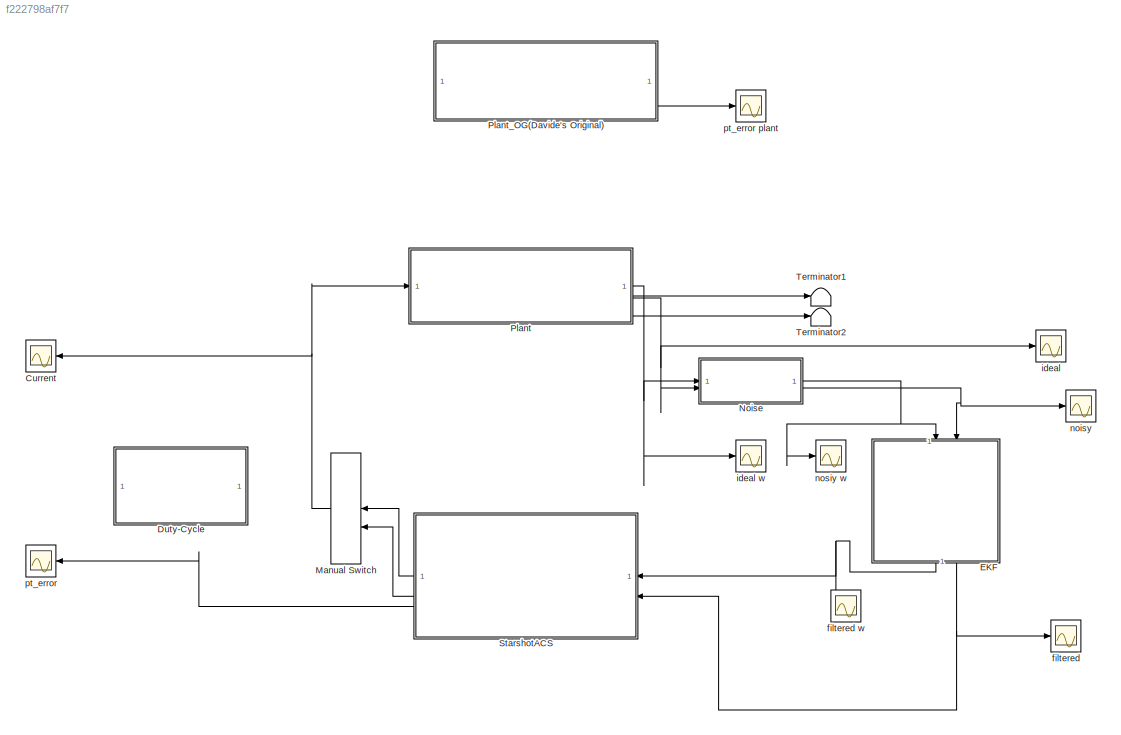
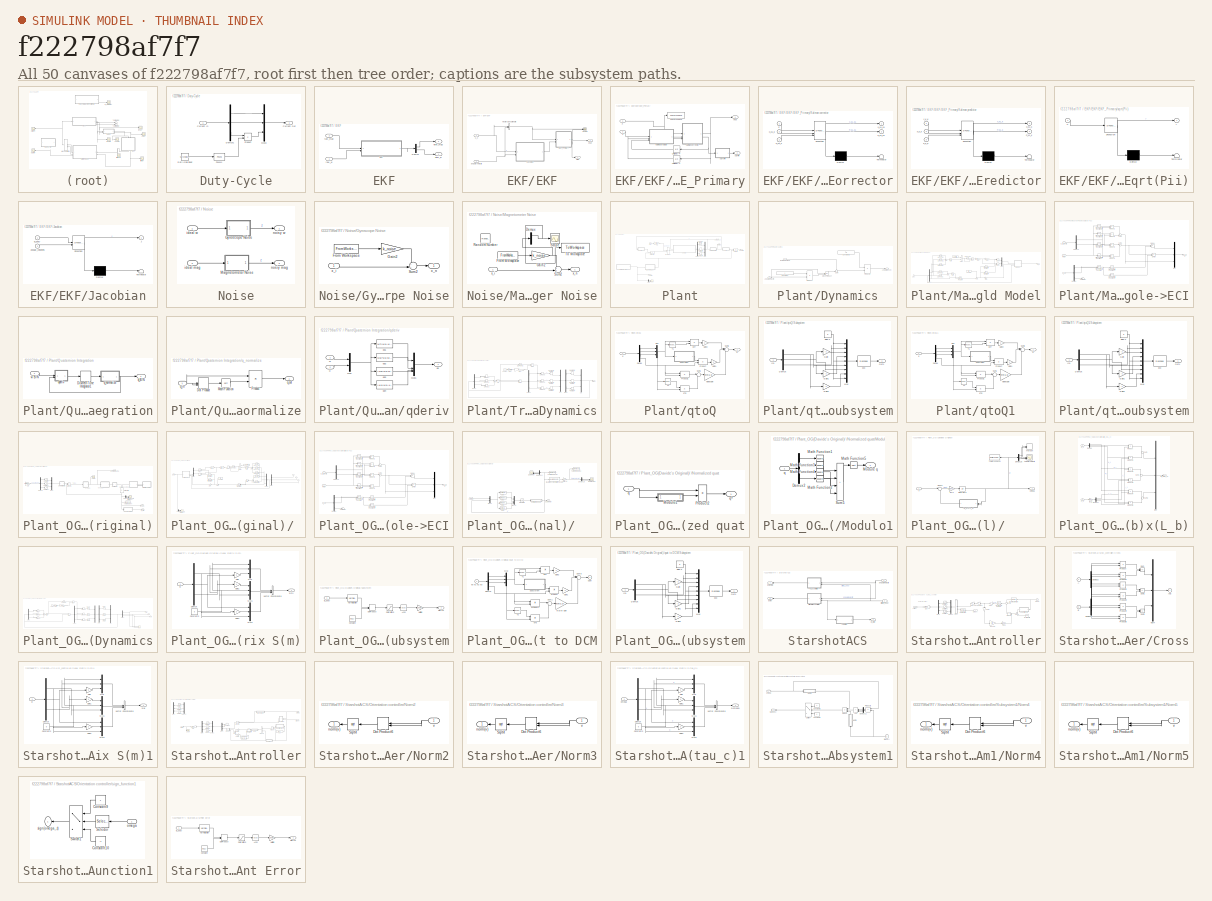
[diagram: thumbnail index - all 50 canvases of the model, root first then tree order]
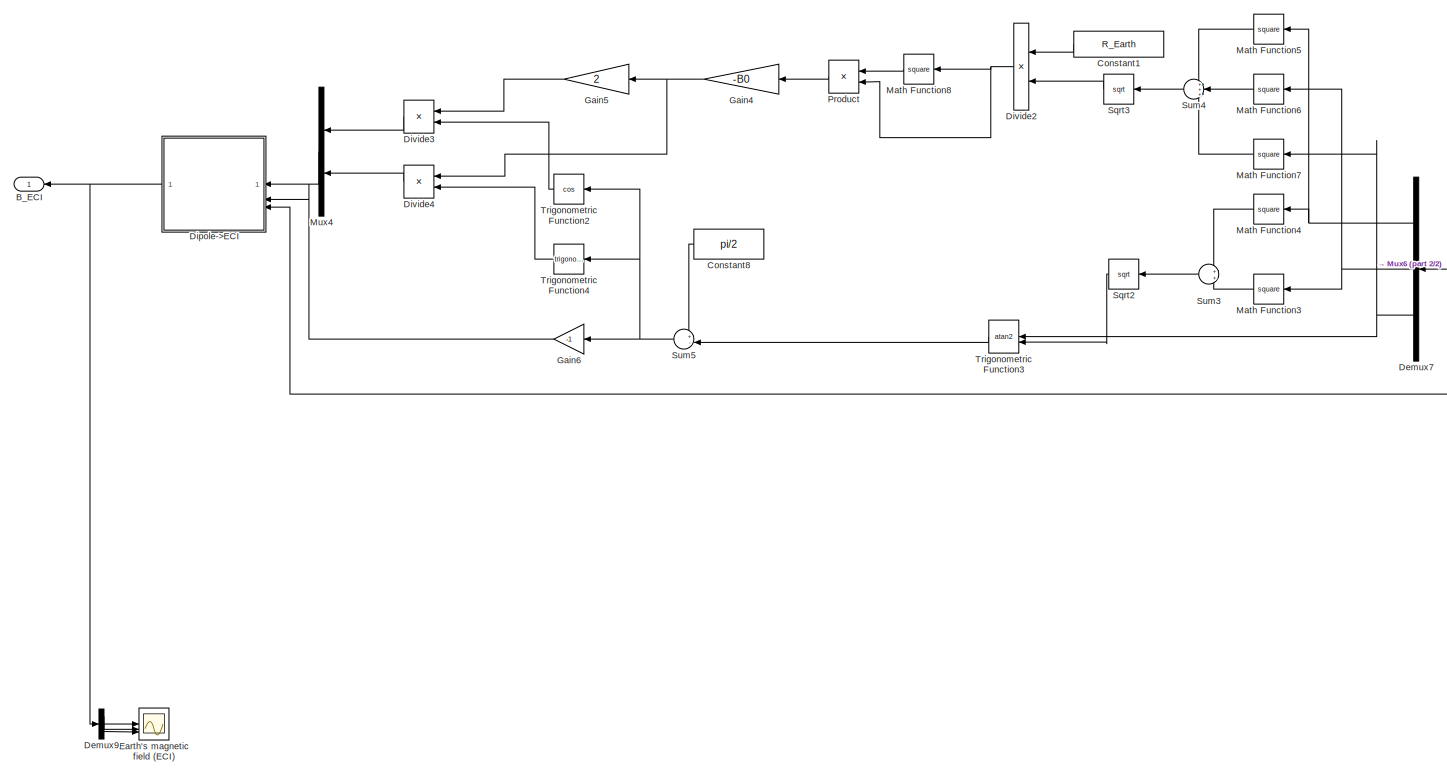
[diagram: Plant_OG(Davide's Original)/  - part 1/2, most of the canvas]
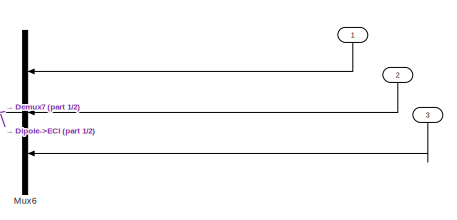
[diagram: Plant_OG(Davide's Original)/  - part 2/2, middle right region]
MODEL slx_f222798af7f7
KIND model
CONFIG AbsTol = auto
CONFIG EnableMultiTasking = off
CONFIG FixedStep = auto
CONFIG MaxStep = 4.0
CONFIG MinStep = .001
CONFIG RelTol = 1e-6
CONFIG SampleTimeConstraint = Unconstrained
CONFIG SolverName = ode45
CONFIG StartTime = 0.0
CONFIG StopTime = 10000
BLOCK [Scope] Current
  Floating = off
  NameLocation = top
  NumInputPorts = 1
  ScopeSpecificationString = Simulink.scopes.TimeScopeBlockCfg('CurrentConfiguration', extmgr.ConfigurationSet(extmgr.Configuration('Core','General UI',true),extmgr.Configuration('Core','Source UI',true),extmgr.Configuration('Sources','WiredSimulink',true,'DataLoggingVariableName','ScopeData3'),extmgr.Configuration('Visuals','Time Domain',true,'SerializedDisplays',{struct('MinYLimReal','-0.3125','MaxYLimReal','0.3125','YLabel...<+1498ch>
BLOCK [SubSystem] Duty-Cycle
  Commented = on
  NameLocation = top
BLOCK [Inport] Duty-Cycle/Current In
BLOCK [Outport] Duty-Cycle/Current Out
BLOCK [Demux] Duty-Cycle/Demux1
  NameLocation = top
  Outputs = 3
BLOCK [Constant] Duty-Cycle/Duty-cycle input
  Value = starshot.controller.dutyclc
BLOCK [Mux] Duty-Cycle/Mux3
  DisplayOption = bar
  Inputs = 3
  NameLocation = top
BLOCK [Reference] Duty-Cycle/PWM1  REF=simulink/Discontinuities/PWM
  DisableCoverage = on
  SourceBlock = simulink/Discontinuities/PWM
  SourceType = PWM
BLOCK [Product] Duty-Cycle/Product
BLOCK [SubSystem] EKF
  NameLocation = left
  SystemSampleTime = 0.2
  TreatAsAtomicUnit = on
BLOCK [Demux] EKF/Demux
  Outputs = 2
BLOCK [SubSystem] EKF/EKF
  MinAlgLoopOccurrences = on
  TreatAsAtomicUnit = on
  TreatAsGroupedWhenPropagatingVariantConditions = off
BLOCK [Outport] EKF/EKF/Diag
  Port = 2
BLOCK [SubSystem] EKF/EKF/EKF_Primary
BLOCK [Inport] EKF/EKF/EKF_Primary/J
  Port = 2
BLOCK [SubSystem] EKF/EKF/EKF_Primary/Kalman corrector
  ErrorFcn = Stateflow.Translate.translate
  PermitHierarchicalResolution = ExplicitOnly
  SFBlockType = MATLAB Function
  TreatAsAtomicUnit = on
BLOCK [Demux] EKF/EKF/EKF_Primary/Kalman corrector/ Demux 
  Outputs = 1
BLOCK [S-Function] EKF/EKF/EKF_Primary/Kalman corrector/ SFunction 
  EnableBusSupport = on
  FunctionName = sf_sfun
  Parameters = Hd,R_n
  PortCounts = [3 3]
  SFcnIsStateOwnerBlock = off
  SFunctionDeploymentMode = off
  Tag = Stateflow S-Function 1
BLOCK [Terminator] EKF/EKF/EKF_Primary/Kalman corrector/ Terminator 
BLOCK [Inport] EKF/EKF/EKF_Primary/Kalman corrector/P_k1_k
  Port = 3
BLOCK [Outport] EKF/EKF/EKF_Primary/Kalman corrector/P_k1_k1
  Port = 2
  VectorParamsAs1DForOutWhenUnconnected = off
BLOCK [Inport] EKF/EKF/EKF_Primary/Kalman corrector/X_k1_k
  Port = 2
BLOCK [Outport] EKF/EKF/EKF_Primary/Kalman corrector/X_k1_k1
  VectorParamsAs1DForOutWhenUnconnected = off
BLOCK [Inport] EKF/EKF/EKF_Primary/Kalman corrector/Z
BLOCK [SubSystem] EKF/EKF/EKF_Primary/Kalman predictor
  ErrorFcn = Stateflow.Translate.translate
  PermitHierarchicalResolution = ExplicitOnly
  SFBlockType = MATLAB Function
  TreatAsAtomicUnit = on
BLOCK [Demux] EKF/EKF/EKF_Primary/Kalman predictor/ Demux 
  Outputs = 1
BLOCK [S-Function] EKF/EKF/EKF_Primary/Kalman predictor/ SFunction 
  EnableBusSupport = on
  FunctionName = sf_sfun
  Parameters = Q,dT
  PortCounts = [3 3]
  SFcnIsStateOwnerBlock = off
  SFunctionDeploymentMode = off
  Tag = Stateflow S-Function 3
BLOCK [Terminator] EKF/EKF/EKF_Primary/Kalman predictor/ Terminator 
BLOCK [Inport] EKF/EKF/EKF_Primary/Kalman predictor/J_k_k
BLOCK [Outport] EKF/EKF/EKF_Primary/Kalman predictor/P_k1_k
  Port = 2
  VectorParamsAs1DForOutWhenUnconnected = off
BLOCK [Inport] EKF/EKF/EKF_Primary/Kalman predictor/P_k_k
  Port = 3
BLOCK [Outport] EKF/EKF/EKF_Primary/Kalman predictor/X_k1_k
  VectorParamsAs1DForOutWhenUnconnected = off
BLOCK [Inport] EKF/EKF/EKF_Primary/Kalman predictor/X_k_k
  Port = 2
BLOCK [ToWorkspace] EKF/EKF/EKF_Primary/To Workspace
  FixptAsFi = on
  MaxDataPoints = inf
  SampleTime = -1
  SaveFormat = Timeseries
  VariableName = Z_data
BLOCK [UnitDelay] EKF/EKF/EKF_Primary/Unit Delay - P
  HasFrameUpgradeWarning = on
  InitialCondition = R_n
  SampleTime = -1
BLOCK [UnitDelay] EKF/EKF/EKF_Primary/Unit Delay - X
  HasFrameUpgradeWarning = on
  InitialCondition = [3.42e-05,-3.0e-06,-9.28e-05,0.06, -0.05, 0.07]'
  SampleTime = -1
BLOCK [Outport] EKF/EKF/EKF_Primary/Xhat
  PortDimensions = 6
BLOCK [Inport] EKF/EKF/EKF_Primary/Z
BLOCK [SubSystem] EKF/EKF/EKF_Primary/sqrt(Pii)
  ErrorFcn = Stateflow.Translate.translate
  PermitHierarchicalResolution = ExplicitOnly
  SFBlockType = MATLAB Function
  TreatAsAtomicUnit = on
BLOCK [Demux] EKF/EKF/EKF_Primary/sqrt(Pii)/ Demux 
  Outputs = 1
BLOCK [S-Function] EKF/EKF/EKF_Primary/sqrt(Pii)/ SFunction 
  EnableBusSupport = on
  FunctionName = sf_sfun
  PortCounts = [1 2]
  SFcnIsStateOwnerBlock = off
  SFunctionDeploymentMode = off
  Tag = Stateflow S-Function 4
BLOCK [Terminator] EKF/EKF/EKF_Primary/sqrt(Pii)/ Terminator 
BLOCK [Inport] EKF/EKF/EKF_Primary/sqrt(Pii)/u
BLOCK [Outport] EKF/EKF/EKF_Primary/sqrt(Pii)/y
  VectorParamsAs1DForOutWhenUnconnected = off
BLOCK [Outport] EKF/EKF/EKF_Primary/sqrtPii
  Port = 2
  VectorParamsAs1DForOutWhenUnconnected = off
BLOCK [SubSystem] EKF/EKF/Jacobian
  ErrorFcn = Stateflow.Translate.translate
  PermitHierarchicalResolution = ExplicitOnly
  SFBlockType = MATLAB Function
  TreatAsAtomicUnit = on
BLOCK [Demux] EKF/EKF/Jacobian/ Demux 
  Outputs = 1
BLOCK [S-Function] EKF/EKF/Jacobian/ SFunction 
  EnableBusSupport = on
  FunctionName = sf_sfun
  PortCounts = [2 2]
  SFcnIsStateOwnerBlock = off
  SFunctionDeploymentMode = off
  Tag = Stateflow S-Function 2
BLOCK [Terminator] EKF/EKF/Jacobian/ Terminator 
BLOCK [Inport] EKF/EKF/Jacobian/B_body
BLOCK [Outport] EKF/EKF/Jacobian/J
  VectorParamsAs1DForOutWhenUnconnected = off
BLOCK [Inport] EKF/EKF/Jacobian/angular_velocities
  Port = 2
BLOCK [Scope] EKF/EKF/Scope
  Floating = off
  NumInputPorts = 2
  ScopeSpecificationString = Simulink.scopes.TimeScopeBlockCfg('CurrentConfiguration', extmgr.ConfigurationSet(extmgr.Configuration('Core','General UI',true),extmgr.Configuration('Core','Source UI',true),extmgr.Configuration('Sources','WiredSimulink',true,'DataLoggingVariableName','ScopeData5'),extmgr.Configuration('Visuals','Time Domain',true,'SerializedDisplays',{struct('MinYLimReal','-0.06829','MaxYLimReal','0.11428','YLab...<+1631ch>
BLOCK [Concatenate] EKF/EKF/Vector Concatenate
BLOCK [Outport] EKF/EKF/Xhat
BLOCK [Inport] EKF/EKF/angular velocity
  Port = 2
BLOCK [Inport] EKF/EKF/x_n
BLOCK [Outport] EKF/filter_mag
  Port = 2
BLOCK [Outport] EKF/filter_w
BLOCK [Inport] EKF/raw_mag
  Port = 2
BLOCK [Inport] EKF/raw_w
BLOCK [ManualSwitch] Manual Switch
  CurrentSetting = 0
  NameLocation = top
BLOCK [SubSystem] Noise
  TreatAsAtomicUnit = on
BLOCK [SubSystem] Noise/Gyroscope Noise
BLOCK [FromWorkspace] Noise/Gyroscope Noise/From Workspace
  VariableName = w_noise
BLOCK [Gain] Noise/Gyroscope Noise/Gain2
  Gain = k_noise
BLOCK [Sum] Noise/Gyroscope Noise/Sum2
  Inputs = ++|
BLOCK [Inport] Noise/Gyroscope Noise/x_i
BLOCK [Outport] Noise/Gyroscope Noise/x_n
  VectorParamsAs1DForOutWhenUnconnected = off
BLOCK [SubSystem] Noise/Magnetometer Noise
  MinAlgLoopOccurrences = on
  TreatAsAtomicUnit = on
BLOCK [Demux] Noise/Magnetometer Noise/Demux
  Outputs = 3
BLOCK [FromWorkspace] Noise/Magnetometer Noise/From Workspace
  VariableName = mag_noise
BLOCK [Gain] Noise/Magnetometer Noise/Gain2
  Gain = k_noise
BLOCK [RandomNumber] Noise/Magnetometer Noise/Random Number
  Mean = 1
  SampleTime = 0.1
  Seed = [1 2 3]
BLOCK [Scope] Noise/Magnetometer Noise/Scope
  Floating = off
  NumInputPorts = 1
  ScopeSpecificationString = Simulink.scopes.TimeScopeBlockCfg('CurrentConfiguration', extmgr.ConfigurationSet(extmgr.Configuration('Core','General UI',true),extmgr.Configuration('Core','Source UI',true),extmgr.Configuration('Sources','WiredSimulink',true,'DataLoggingVariableName','ScopeData1'),extmgr.Configuration('Visuals','Time Domain',true,'SerializedDisplays',{struct('MinYLimReal','-1.54802','MaxYLimReal','0.17202','YLab...<+1422ch>
BLOCK [Sum] Noise/Magnetometer Noise/Sum2
  Inputs = ++|
BLOCK [ToWorkspace] Noise/Magnetometer Noise/To Workspace
  FixptAsFi = on
  MaxDataPoints = inf
  SampleTime = -1
  SaveFormat = Timeseries
  VariableName = noise_x
BLOCK [Inport] Noise/Magnetometer Noise/x_i
BLOCK [Outport] Noise/Magnetometer Noise/x_n
  VectorParamsAs1DForOutWhenUnconnected = off
BLOCK [Inport] Noise/ideal mag
  Port = 2
BLOCK [Inport] Noise/ideal w
BLOCK [Outport] Noise/noisy w
BLOCK [Outport] Noise/nosiy mag
  Port = 2
BLOCK [SubSystem] Plant
  SystemSampleTime = 0.01
  TreatAsAtomicUnit = on
BLOCK [Reference] Plant/Cross Product  REF=vrlib/Utilities/Cross Product
  SourceBlock = vrlib/Utilities/Cross Product
  SourceType = Cross Product
BLOCK [Demux] Plant/Demux
  Outputs = 3
BLOCK [Demux] Plant/Demux4
  Outputs = 3
BLOCK [DiscreteIntegrator] Plant/Discrete-Time Integrator
  ICPrevOutput = DiscIntNeverNeededParam
  ICPrevScaledInput = DiscIntNeverNeededParam
  InitialCondition = wx
  InitialConditionSetting = Auto
  SampleTime = -1
BLOCK [DiscreteIntegrator] Plant/Discrete-Time Integrator1
  ICPrevOutput = DiscIntNeverNeededParam
  ICPrevScaledInput = DiscIntNeverNeededParam
  InitialCondition = wy
  InitialConditionSetting = Auto
  SampleTime = -1
BLOCK [DiscreteIntegrator] Plant/Discrete-Time Integrator2
  ICPrevOutput = DiscIntNeverNeededParam
  ICPrevScaledInput = DiscIntNeverNeededParam
  InitialCondition = wz
  InitialConditionSetting = Auto
  SampleTime = -1
BLOCK [SubSystem] Plant/Dynamics
  TreatAsAtomicUnit = on
BLOCK [Outport] Plant/Dynamics/Angular Accel
BLOCK [Inport] Plant/Dynamics/Angular Velocity
BLOCK [Constant] Plant/Dynamics/Constant
  Value = I
BLOCK [Constant] Plant/Dynamics/Constant1
  Value = I^-1
BLOCK [Reference] Plant/Dynamics/Cross Product  REF=vrlib/Utilities/Cross Product
  SourceBlock = vrlib/Utilities/Cross Product
  SourceType = Cross Product
BLOCK [Inport] Plant/Dynamics/External Torque
  Port = 2
BLOCK [Product] Plant/Dynamics/Product
  Multiplication = Matrix(*)
BLOCK [Product] Plant/Dynamics/Product1
  Multiplication = Matrix(*)
BLOCK [Sum] Plant/Dynamics/Sum
  Inputs = +-
BLOCK [Gain] Plant/Gain
  Gain = A*n*k
BLOCK [SubSystem] Plant/Magnetic Field Model
  TreatAsAtomicUnit = on
BLOCK [Constant] Plant/Magnetic Field Model/Constant1
  Value = R_Earth
BLOCK [Constant] Plant/Magnetic Field Model/Constant8
  Value = pi/2
BLOCK [Demux] Plant/Magnetic Field Model/Demux7
  Outputs = 3
BLOCK [SubSystem] Plant/Magnetic Field Model/Dipole->ECI
  TreatAsAtomicUnit = on
BLOCK [Inport] Plant/Magnetic Field Model/Dipole->ECI/-theta
  Port = 2
BLOCK [Outport] Plant/Magnetic Field Model/Dipole->ECI/B
BLOCK [Inport] Plant/Magnetic Field Model/Dipole->ECI/B_r,B_theta
BLOCK [Demux] Plant/Magnetic Field Model/Dipole->ECI/Demux
  Outputs = 3
BLOCK [Demux] Plant/Magnetic Field Model/Dipole->ECI/Demux8
  Outputs = 2
BLOCK [Product] Plant/Magnetic Field Model/Dipole->ECI/Divide
  Inputs = **
BLOCK [Product] Plant/Magnetic Field Model/Dipole->ECI/Divide1
  Inputs = **
BLOCK [Mux] Plant/Magnetic Field Model/Dipole->ECI/Mux
  DisplayOption = bar
  Inputs = 3
BLOCK [Product] Plant/Magnetic Field Model/Dipole->ECI/Product1
BLOCK [Product] Plant/Magnetic Field Model/Dipole->ECI/Product2
BLOCK [Product] Plant/Magnetic Field Model/Dipole->ECI/Product3
BLOCK [Product] Plant/Magnetic Field Model/Dipole->ECI/Product4
BLOCK [Sum] Plant/Magnetic Field Model/Dipole->ECI/Sum5
  Inputs = +-|
BLOCK [Sum] Plant/Magnetic Field Model/Dipole->ECI/Sum6
  Inputs = |++
BLOCK [Terminator] Plant/Magnetic Field Model/Dipole->ECI/Terminator
BLOCK [Trigonometry] Plant/Magnetic Field Model/Dipole->ECI/Trigonometric Function
  Operator = atan2
BLOCK [Trigonometry] Plant/Magnetic Field Model/Dipole->ECI/Trigonometric Function1
  Operator = cos
BLOCK [Trigonometry] Plant/Magnetic Field Model/Dipole->ECI/Trigonometric Function2
BLOCK [Trigonometry] Plant/Magnetic Field Model/Dipole->ECI/Trigonometric Function5
  Operator = cos
BLOCK [Trigonometry] Plant/Magnetic Field Model/Dipole->ECI/Trigonometric Function6
BLOCK [Trigonometry] Plant/Magnetic Field Model/Dipole->ECI/Trigonometric Function7
BLOCK [Trigonometry] Plant/Magnetic Field Model/Dipole->ECI/Trigonometric Function8
  Operator = cos
BLOCK [Inport] Plant/Magnetic Field Model/Dipole->ECI/r
  Port = 3
BLOCK [Product] Plant/Magnetic Field Model/Divide2
  Inputs = */
BLOCK [Product] Plant/Magnetic Field Model/Divide3
  Inputs = **
BLOCK [Product] Plant/Magnetic Field Model/Divide4
  Inputs = **
BLOCK [Outport] Plant/Magnetic Field Model/ECI_B
BLOCK [Inport] Plant/Magnetic Field Model/ECIxyz
  NameLocation = top
BLOCK [Gain] Plant/Magnetic Field Model/Gain4
  Gain = -B0
BLOCK [Gain] Plant/Magnetic Field Model/Gain5
  Gain = 2
BLOCK [Gain] Plant/Magnetic Field Model/Gain6
  Gain = -1
BLOCK [Math] Plant/Magnetic Field Model/Math Function3
  Operator = square
  SignedPower = on
BLOCK [Math] Plant/Magnetic Field Model/Math Function4
  Operator = square
  SignedPower = on
BLOCK [Math] Plant/Magnetic Field Model/Math Function5
  Operator = square
  SignedPower = on
BLOCK [Math] Plant/Magnetic Field Model/Math Function6
  Operator = square
  SignedPower = on
BLOCK [Math] Plant/Magnetic Field Model/Math Function7
  Operator = square
  SignedPower = on
BLOCK [Math] Plant/Magnetic Field Model/Math Function8
  Operator = square
  SignedPower = on
BLOCK [Mux] Plant/Magnetic Field Model/Mux4
  DisplayOption = bar
  Inputs = 2
BLOCK [Product] Plant/Magnetic Field Model/Product
BLOCK [Sqrt] Plant/Magnetic Field Model/Sqrt2
BLOCK [Sqrt] Plant/Magnetic Field Model/Sqrt3
BLOCK [Sum] Plant/Magnetic Field Model/Sum3
BLOCK [Sum] Plant/Magnetic Field Model/Sum4
  Inputs = +++
BLOCK [Sum] Plant/Magnetic Field Model/Sum5
  Inputs = +-|
BLOCK [Trigonometry] Plant/Magnetic Field Model/Trigonometric Function2
  Operator = cos
BLOCK [Trigonometry] Plant/Magnetic Field Model/Trigonometric Function3
  Operator = atan2
BLOCK [Trigonometry] Plant/Magnetic Field Model/Trigonometric Function4
BLOCK [Product] Plant/Matrix Multiply
  Multiplication = Matrix(*)
BLOCK [Product] Plant/Matrix Multiply1
  Multiplication = Matrix(*)
BLOCK [Mux] Plant/Mux3
  DisplayOption = bar
  Inputs = 3
BLOCK [SubSystem] Plant/Quaternion Integration
BLOCK [DiscreteIntegrator] Plant/Quaternion Integration/Discrete-Time Integrator1
  ICPrevOutput = DiscIntNeverNeededParam
  ICPrevScaledInput = DiscIntNeverNeededParam
  InitialCondition = q0
  InitialConditionSetting = Auto
  SampleTime = -1
BLOCK [Outport] Plant/Quaternion Integration/q_B//N
BLOCK [SubSystem] Plant/Quaternion Integration/q_normalize
BLOCK [DotProduct] Plant/Quaternion Integration/q_normalize/Dot Product
  OutDataTypeStr = Inherit: Inherit via internal rule
BLOCK [Math] Plant/Quaternion Integration/q_normalize/Math Function
  Operator = sqrt
  SignedPower = on
BLOCK [Product] Plant/Quaternion Integration/q_normalize/Product
  InputSameDT = on
  Inputs = */
  OutDataTypeStr = Inherit: Same as first input
  SaturateOnIntegerOverflow = on
BLOCK [Inport] Plant/Quaternion Integration/q_normalize/q_in
  PortDimensions = 4
BLOCK [Outport] Plant/Quaternion Integration/q_normalize/q_out
BLOCK [SubSystem] Plant/Quaternion Integration/qderiv
BLOCK [Mux] Plant/Quaternion Integration/qderiv/Mux
  DisplayOption = bar
  Inputs = 2
BLOCK [Mux] Plant/Quaternion Integration/qderiv/Mux1
  DisplayOption = bar
BLOCK [Inport] Plant/Quaternion Integration/qderiv/q
  Port = 2
BLOCK [Outport] Plant/Quaternion Integration/qderiv/qd
BLOCK [Fcn] Plant/Quaternion Integration/qderiv/qd1
  Expr = (u(7)*u(1)-u(6)*u(2)+u(5)*u(3))/2
BLOCK [Fcn] Plant/Quaternion Integration/qderiv/qd2
  Expr = (u(6)*u(1)+u(7)*u(2)-u(4)*u(3))/2
BLOCK [Fcn] Plant/Quaternion Integration/qderiv/qd3
  Expr = (-u(5)*u(1)+u(4)*u(2)+u(7)*u(3))/2
BLOCK [Fcn] Plant/Quaternion Integration/qderiv/qd4
  Expr = (-u(4)*u(1)-u(5)*u(2)-u(6)*u(3))/2
BLOCK [Inport] Plant/Quaternion Integration/qderiv/w
BLOCK [Inport] Plant/Quaternion Integration/w B//N
BLOCK [Scope] Plant/Scope
  Floating = off
  NumInputPorts = 3
  ScopeSpecificationString = Simulink.scopes.TimeScopeBlockCfg('CurrentConfiguration', extmgr.ConfigurationSet(extmgr.Configuration('Core','General UI',true),extmgr.Configuration('Core','Source UI',true),extmgr.Configuration('Sources','WiredSimulink',true,'DataLoggingVariableName','ScopeData1'),extmgr.Configuration('Visuals','Time Domain',true,'SerializedDisplays',{struct('MinYLimReal','6403135.10671','MaxYLimReal','12371784....<+2772ch>
BLOCK [SubSystem] Plant/Tranlational Dynamics
  TreatAsAtomicUnit = on
BLOCK [Constant] Plant/Tranlational Dynamics/Constant
  Value = -G
BLOCK [Demux] Plant/Tranlational Dynamics/Demux
  Outputs = 3
BLOCK [Demux] Plant/Tranlational Dynamics/Demux1
  Outputs = 3
BLOCK [Demux] Plant/Tranlational Dynamics/Demux2
  Outputs = 3
BLOCK [DiscreteIntegrator] Plant/Tranlational Dynamics/Discrete-Time Integrator1
  ICPrevOutput = DiscIntNeverNeededParam
  ICPrevScaledInput = DiscIntNeverNeededParam
  InitialCondition = sqrt(398600/(Alt+R_Earth/1000))*1000*cos(inclination)
  InitialConditionSetting = Auto
  SampleTime = -1
BLOCK [DiscreteIntegrator] Plant/Tranlational Dynamics/Discrete-Time Integrator2
  ICPrevOutput = DiscIntNeverNeededParam
  ICPrevScaledInput = DiscIntNeverNeededParam
  InitialCondition = starshot.IC.xdot
  InitialConditionSetting = Auto
  SampleTime = -1
BLOCK [DiscreteIntegrator] Plant/Tranlational Dynamics/Discrete-Time Integrator3
  ICPrevOutput = DiscIntNeverNeededParam
  ICPrevScaledInput = DiscIntNeverNeededParam
  InitialCondition = sqrt(398600/(Alt+R_Earth/1000))*1000*sin(inclination)
  InitialConditionSetting = Auto
  SampleTime = -1
BLOCK [DiscreteIntegrator] Plant/Tranlational Dynamics/Discrete-Time Integrator4
  ICPrevOutput = DiscIntNeverNeededParam
  ICPrevScaledInput = DiscIntNeverNeededParam
  InitialCondition = Alt*1000+R_Earth
  InitialConditionSetting = Auto
  SampleTime = -1
BLOCK [DiscreteIntegrator] Plant/Tranlational Dynamics/Discrete-Time Integrator5
  ICPrevOutput = DiscIntNeverNeededParam
  ICPrevScaledInput = DiscIntNeverNeededParam
  InitialCondition = starshot.IC.y
  InitialConditionSetting = Auto
  SampleTime = -1
BLOCK [DiscreteIntegrator] Plant/Tranlational Dynamics/Discrete-Time Integrator6
  ICPrevOutput = DiscIntNeverNeededParam
  ICPrevScaledInput = DiscIntNeverNeededParam
  InitialCondition = starshot.IC.z
  InitialConditionSetting = Auto
  SampleTime = -1
BLOCK [Product] Plant/Tranlational Dynamics/Divide
  Inputs = /*
BLOCK [Product] Plant/Tranlational Dynamics/Divide1
  Inputs = /*
BLOCK [DotProduct] Plant/Tranlational Dynamics/Dot Product
  OutDataTypeStr = Inherit: Inherit via internal rule
BLOCK [DotProduct] Plant/Tranlational Dynamics/Dot Product1
  OutDataTypeStr = Inherit: Inherit via internal rule
BLOCK [DotProduct] Plant/Tranlational Dynamics/Dot Product2
  OutDataTypeStr = Inherit: Inherit via internal rule
BLOCK [DotProduct] Plant/Tranlational Dynamics/Dot Product3
  OutDataTypeStr = Inherit: Inherit via internal rule
BLOCK [DotProduct] Plant/Tranlational Dynamics/Dot Product4
  OutDataTypeStr = Inherit: Inherit via internal rule
BLOCK [DotProduct] Plant/Tranlational Dynamics/Dot Product5
  OutDataTypeStr = Inherit: Inherit via internal rule
BLOCK [Outport] Plant/Tranlational Dynamics/ECIxyz
BLOCK [Gain] Plant/Tranlational Dynamics/Gain1
  Gain = M_Earth
BLOCK [Gain] Plant/Tranlational Dynamics/Gain2
  Gain = m
BLOCK [Math] Plant/Tranlational Dynamics/Math Function
  Operator = square
  SignedPower = on
BLOCK [Mux] Plant/Tranlational Dynamics/Mux
  DisplayOption = bar
  Inputs = 3
BLOCK [Mux] Plant/Tranlational Dynamics/Mux1
  DisplayOption = bar
  Inputs = 3
BLOCK [Sqrt] Plant/Tranlational Dynamics/Sqrt
BLOCK [Sum] Plant/Tranlational Dynamics/Sum
  Inputs = +++
BLOCK [Outport] Plant/angular velocity
BLOCK [Inport] Plant/current
  NameLocation = top
BLOCK [Outport] Plant/magnetic field
  Port = 2
BLOCK [SubSystem] Plant/qtoQ
  TreatAsAtomicUnit = on
BLOCK [Demux] Plant/qtoQ/Demux
  DisplayOption = none
BLOCK [Gain] Plant/qtoQ/Gain1
  Gain = 2
  OutDataTypeStr = Inherit: Same as input
  ParamDataTypeStr = Inherit: Same as input
  SaturateOnIntegerOverflow = on
BLOCK [Gain] Plant/qtoQ/Gain2
  Gain = 2
  OutDataTypeStr = Inherit: Same as input
  ParamDataTypeStr = Inherit: Same as input
  SaturateOnIntegerOverflow = on
BLOCK [Gain] Plant/qtoQ/Matrix Gain
  Gain = eye(3,3)
  OutDataTypeStr = Inherit: Same as input
  ParamDataTypeStr = Inherit: Same as input
  SaturateOnIntegerOverflow = on
BLOCK [Mux] Plant/qtoQ/Mux
  DisplayOption = bar
  Inputs = 3
BLOCK [Product] Plant/qtoQ/Product
  InputSameDT = on
  OutDataTypeStr = Inherit: Same as first input
  SaturateOnIntegerOverflow = on
BLOCK [Product] Plant/qtoQ/Product1
  InputSameDT = on
  OutDataTypeStr = Inherit: Same as first input
  SaturateOnIntegerOverflow = on
BLOCK [Outport] Plant/qtoQ/Q
BLOCK [SubSystem] Plant/qtoQ/Subsystem
BLOCK [Reshape] Plant/qtoQ/Subsystem/3x3
  OutputDimensionality = Customize
  OutputDimensions = [3,3]
BLOCK [Demux] Plant/qtoQ/Subsystem/Demux
  DisplayOption = none
  Outputs = 3
BLOCK [Gain] Plant/qtoQ/Subsystem/Gain
  Gain = -1
  OutDataTypeStr = Inherit: Same as input
  ParamDataTypeStr = Inherit: Same as input
  SaturateOnIntegerOverflow = on
BLOCK [Gain] Plant/qtoQ/Subsystem/Gain1
  Gain = -1
  OutDataTypeStr = Inherit: Same as input
  ParamDataTypeStr = Inherit: Same as input
  SaturateOnIntegerOverflow = on
BLOCK [Gain] Plant/qtoQ/Subsystem/Gain2
  Gain = -1
  OutDataTypeStr = Inherit: Same as input
  ParamDataTypeStr = Inherit: Same as input
  SaturateOnIntegerOverflow = on
BLOCK [Inport] Plant/qtoQ/Subsystem/In1
BLOCK [Mux] Plant/qtoQ/Subsystem/Mux
  DisplayOption = bar
  Inputs = 9
BLOCK [Outport] Plant/qtoQ/Subsystem/Out1
BLOCK [Constant] Plant/qtoQ/Subsystem/diag 0 
  Value = 0
BLOCK [Sum] Plant/qtoQ/Sum1
  InputSameDT = on
  Inputs = |+-
  OutDataTypeStr = Inherit: Same as first input
  SaturateOnIntegerOverflow = on
BLOCK [Sum] Plant/qtoQ/Sum8
  InputSameDT = on
  Inputs = |+-+
  OutDataTypeStr = Inherit: Same as first input
  SaturateOnIntegerOverflow = on
BLOCK [Math] Plant/qtoQ/T1
  Operator = transpose
  SignedPower = on
BLOCK [Math] Plant/qtoQ/T2
  Operator = transpose
  SignedPower = on
BLOCK [Inport] Plant/qtoQ/q
BLOCK [Product] Plant/qtoQ/qTq
  InputSameDT = on
  Multiplication = Matrix(*)
  OutDataTypeStr = Inherit: Same as first input
  SaturateOnIntegerOverflow = on
BLOCK [Product] Plant/qtoQ/qqT
  InputSameDT = on
  Multiplication = Matrix(*)
  OutDataTypeStr = Inherit: Same as first input
  SaturateOnIntegerOverflow = on
BLOCK [SubSystem] Plant/qtoQ1
  TreatAsAtomicUnit = on
BLOCK [Demux] Plant/qtoQ1/Demux
  DisplayOption = none
BLOCK [Gain] Plant/qtoQ1/Gain1
  Gain = 2
  OutDataTypeStr = Inherit: Same as input
  ParamDataTypeStr = Inherit: Same as input
  SaturateOnIntegerOverflow = on
BLOCK [Gain] Plant/qtoQ1/Gain2
  Gain = 2
  OutDataTypeStr = Inherit: Same as input
  ParamDataTypeStr = Inherit: Same as input
  SaturateOnIntegerOverflow = on
BLOCK [Gain] Plant/qtoQ1/Matrix Gain
  Gain = eye(3,3)
  OutDataTypeStr = Inherit: Same as input
  ParamDataTypeStr = Inherit: Same as input
  SaturateOnIntegerOverflow = on
BLOCK [Mux] Plant/qtoQ1/Mux
  DisplayOption = bar
  Inputs = 3
BLOCK [Product] Plant/qtoQ1/Product
  InputSameDT = on
  OutDataTypeStr = Inherit: Same as first input
  SaturateOnIntegerOverflow = on
BLOCK [Product] Plant/qtoQ1/Product1
  InputSameDT = on
  OutDataTypeStr = Inherit: Same as first input
  SaturateOnIntegerOverflow = on
BLOCK [Outport] Plant/qtoQ1/Q
BLOCK [SubSystem] Plant/qtoQ1/Subsystem
BLOCK [Reshape] Plant/qtoQ1/Subsystem/3x3
  OutputDimensionality = Customize
  OutputDimensions = [3,3]
BLOCK [Demux] Plant/qtoQ1/Subsystem/Demux
  DisplayOption = none
  Outputs = 3
BLOCK [Gain] Plant/qtoQ1/Subsystem/Gain
  Gain = -1
  OutDataTypeStr = Inherit: Same as input
  ParamDataTypeStr = Inherit: Same as input
  SaturateOnIntegerOverflow = on
BLOCK [Gain] Plant/qtoQ1/Subsystem/Gain1
  Gain = -1
  OutDataTypeStr = Inherit: Same as input
  ParamDataTypeStr = Inherit: Same as input
  SaturateOnIntegerOverflow = on
BLOCK [Gain] Plant/qtoQ1/Subsystem/Gain2
  Gain = -1
  OutDataTypeStr = Inherit: Same as input
  ParamDataTypeStr = Inherit: Same as input
  SaturateOnIntegerOverflow = on
BLOCK [Inport] Plant/qtoQ1/Subsystem/In1
BLOCK [Mux] Plant/qtoQ1/Subsystem/Mux
  DisplayOption = bar
  Inputs = 9
BLOCK [Outport] Plant/qtoQ1/Subsystem/Out1
BLOCK [Constant] Plant/qtoQ1/Subsystem/diag 0 
  Value = 0
BLOCK [Sum] Plant/qtoQ1/Sum1
  InputSameDT = on
  Inputs = |+-
  OutDataTypeStr = Inherit: Same as first input
  SaturateOnIntegerOverflow = on
BLOCK [Sum] Plant/qtoQ1/Sum8
  InputSameDT = on
  Inputs = |+-+
  OutDataTypeStr = Inherit: Same as first input
  SaturateOnIntegerOverflow = on
BLOCK [Math] Plant/qtoQ1/T1
  Operator = transpose
  SignedPower = on
BLOCK [Math] Plant/qtoQ1/T2
  Operator = transpose
  SignedPower = on
BLOCK [Inport] Plant/qtoQ1/q
BLOCK [Product] Plant/qtoQ1/qTq
  InputSameDT = on
  Multiplication = Matrix(*)
  OutDataTypeStr = Inherit: Same as first input
  SaturateOnIntegerOverflow = on
BLOCK [Product] Plant/qtoQ1/qqT
  InputSameDT = on
  Multiplication = Matrix(*)
  OutDataTypeStr = Inherit: Same as first input
  SaturateOnIntegerOverflow = on
BLOCK [Outport] Plant/quaternion
  Port = 4
BLOCK [Outport] Plant/xyzposition
  Port = 3
BLOCK [SubSystem] Plant_OG(Davide's Original)
  Commented = on
BLOCK [SubSystem] Plant_OG(Davide's Original)/ 
BLOCK [SubSystem] Plant_OG(Davide's Original)/   
BLOCK [SubSystem] Plant_OG(Davide's Original)/     
BLOCK [SubSystem] Plant_OG(Davide's Original)/     /(w_b)x(L_b)
BLOCK [Outport] Plant_OG(Davide's Original)/     /(w_b)x(L_b)/(w_b)x(L_b)
BLOCK [Demux] Plant_OG(Davide's Original)/     /(w_b)x(L_b)/Demux
  Outputs = 3
BLOCK [Demux] Plant_OG(Davide's Original)/     /(w_b)x(L_b)/Demux1
  Outputs = 3
BLOCK [Gain] Plant_OG(Davide's Original)/     /(w_b)x(L_b)/Inv(I)
  Gain = starshot.IC.massproperties.I
  Multiplication = Matrix(K*u)
BLOCK [Inport] Plant_OG(Davide's Original)/     /(w_b)x(L_b)/L_b
  Port = 2
BLOCK [Mux] Plant_OG(Davide's Original)/     /(w_b)x(L_b)/Mux
  DisplayOption = bar
  Inputs = 3
BLOCK [Product] Plant_OG(Davide's Original)/     /(w_b)x(L_b)/Product
BLOCK [Product] Plant_OG(Davide's Original)/     /(w_b)x(L_b)/Product1
BLOCK [Product] Plant_OG(Davide's Original)/     /(w_b)x(L_b)/Product2
BLOCK [Product] Plant_OG(Davide's Original)/     /(w_b)x(L_b)/Product3
BLOCK [Product] Plant_OG(Davide's Original)/     /(w_b)x(L_b)/Product4
BLOCK [Product] Plant_OG(Davide's Original)/     /(w_b)x(L_b)/Product5
BLOCK [Sum] Plant_OG(Davide's Original)/     /(w_b)x(L_b)/Sum
  Inputs = +|-
BLOCK [Sum] Plant_OG(Davide's Original)/     /(w_b)x(L_b)/Sum1
  Inputs = -|+
BLOCK [Sum] Plant_OG(Davide's Original)/     /(w_b)x(L_b)/Sum2
  Inputs = +|-
BLOCK [Inport] Plant_OG(Davide's Original)/     /(w_b)x(L_b)/w_b
BLOCK [Scope] Plant_OG(Davide's Original)/     /Angular velocity
  Floating = off
  NumInputPorts = 3
  ScopeSpecificationString = Simulink.scopes.TimeScopeBlockCfg('CurrentConfiguration', extmgr.ConfigurationSet(extmgr.Configuration('Core','General UI',true),extmgr.Configuration('Core','Source UI',true),extmgr.Configuration('Sources','WiredSimulink',true,'DataLoggingVariableName','ScopeData1'),extmgr.Configuration('Visuals','Time Domain',true,'SerializedDisplays',{struct('MinYLimReal','-0.741','MaxYLimReal','0.66904','YLabel...<+2792ch>
BLOCK [Demux] Plant_OG(Davide's Original)/     /Demux16
  Outputs = 3
BLOCK [Integrator] Plant_OG(Davide's Original)/     /Integrator6
  InitialCondition = starshot.IC.w
BLOCK [Gain] Plant_OG(Davide's Original)/     /Inv(I)
  Gain = starshot.IC.massproperties.Iinv
  Multiplication = Matrix(K*u)
BLOCK [Sum] Plant_OG(Davide's Original)/     /Sum12
  Inputs = |+-
BLOCK [Inport] Plant_OG(Davide's Original)/     /T
BLOCK [ToWorkspace] Plant_OG(Davide's Original)/     /To Workspace1
  FixptAsFi = on
  MaxDataPoints = inf
  SampleTime = -1
  SaveFormat = Timeseries
  VariableName = w
BLOCK [Record] Plant_OG(Davide's Original)/     /XY Graph
  CompatibilityTag = XY
  FileSettingsInternal = {"entries":[{"content":{"excelSettings":{"content":{},"type":"Streamout.ExcelSettings"}},"type":"Streamout.FileSettingStorage","uuid":""}],"packageUris":["http:\/\/schema.mathworks.com\/mf0\/streamout_blocks\/R2020a"],"version":"1.0"}
  Layout = [1 1]
  SignalsInternal = {"entries":[{"content":{"signals":[{"content":{"blockPath":[],"dimensions":[1],"domain":"","lineColor":"#a2142f","plots":[1],"port":1,"signalID":17,"signalName":"Demux16:1"},"type":"RecordBlkView.Signal","uuid":""},{"content":{"blockPath":[],"dimensions":[1],"domain":"","lineColor":"#139fff","plots":[1],"port":2,"signalID":20,"signalName":"Demux16:2"},"type":"RecordBlkView.Signal","uuid":""}]},"ty...<+140ch>
  VisualizationBindings = {"xyplotplugin":{"info":[{"series":[{"bindingParametersList":[{"parameter":"X-Axis","signalID":17,"signalName":"Demux16:1"},{"parameter":"Y-Axis","signalID":20,"signalName":"Demux16:2"}],"seriesID":39135}],"subplotID":1}]}}
  st = -1
BLOCK [Outport] Plant_OG(Davide's Original)/     /omega
BLOCK [Demux] Plant_OG(Davide's Original)/   /Demux13
BLOCK [Demux] Plant_OG(Davide's Original)/   /Demux18
  Outputs = 3
BLOCK [Scope] Plant_OG(Davide's Original)/   /Euler angles
  Floating = off
  NumInputPorts = 3
  ScopeSpecificationString = Simulink.scopes.TimeScopeBlockCfg('CurrentConfiguration', extmgr.ConfigurationSet(extmgr.Configuration('Core','General UI',true),extmgr.Configuration('Core','Source UI',true),extmgr.Configuration('Sources','WiredSimulink',true,'DataLoggingVariableName','ScopeData2'),extmgr.Configuration('Visuals','Time Domain',true,'SerializedDisplays',{struct('MinYLimReal','-224.97937','MaxYLimReal','224.98449','...<+2815ch>
BLOCK [Gain] Plant_OG(Davide's Original)/   /Gain18
  Gain = 180/pi
BLOCK [Integrator] Plant_OG(Davide's Original)/   /Integrator7
  InitialCondition = q0
BLOCK [Mux] Plant_OG(Davide's Original)/   /Mux10
  DisplayOption = bar
BLOCK [Mux] Plant_OG(Davide's Original)/   /Mux3
  DisplayOption = bar
  Inputs = 2
BLOCK [SubSystem] Plant_OG(Davide's Original)/   /Normalized quat
BLOCK [SubSystem] Plant_OG(Davide's Original)/   /Normalized quat/Modulo1
BLOCK [Demux] Plant_OG(Davide's Original)/   /Normalized quat/Modulo1/Demux2
  DisplayOption = none
BLOCK [Math] Plant_OG(Davide's Original)/   /Normalized quat/Modulo1/Math Function1
  Operator = square
  SignedPower = on
BLOCK [Math] Plant_OG(Davide's Original)/   /Normalized quat/Modulo1/Math Function2
  Operator = square
  SignedPower = on
BLOCK [Math] Plant_OG(Davide's Original)/   /Normalized quat/Modulo1/Math Function3
  Operator = square
  SignedPower = on
BLOCK [Math] Plant_OG(Davide's Original)/   /Normalized quat/Modulo1/Math Function4
  Operator = square
  SignedPower = on
BLOCK [Math] Plant_OG(Davide's Original)/   /Normalized quat/Modulo1/Math Function5
  Operator = sqrt
  SignedPower = on
BLOCK [Outport] Plant_OG(Davide's Original)/   /Normalized quat/Modulo1/Module q
BLOCK [Sum] Plant_OG(Davide's Original)/   /Normalized quat/Modulo1/Sum5
  IconShape = rectangular
  Inputs = |++++
  SaturateOnIntegerOverflow = on
BLOCK [Inport] Plant_OG(Davide's Original)/   /Normalized quat/Modulo1/q
BLOCK [Product] Plant_OG(Davide's Original)/   /Normalized quat/Product2
  Inputs = */
  OutDataTypeStr = Inherit: Same as first input
  SaturateOnIntegerOverflow = on
BLOCK [Inport] Plant_OG(Davide's Original)/   /Normalized quat/q
BLOCK [Outport] Plant_OG(Davide's Original)/   /Normalized quat/q^
BLOCK [Scope] Plant_OG(Davide's Original)/   /Quaternion
  Floating = off
  NumInputPorts = 4
  ScopeSpecificationString = Simulink.scopes.TimeScopeBlockCfg('CurrentConfiguration', extmgr.ConfigurationSet(extmgr.Configuration('Core','General UI',true),extmgr.Configuration('Core','Source UI',true),extmgr.Configuration('Sources','WiredSimulink',true,'DataLoggingVariableName','ScopeData3'),extmgr.Configuration('Visuals','Time Domain',true,'SerializedDisplays',{struct('MinYLimReal','-1.22386','MaxYLimReal','1.22384','YLab...<+3460ch>
BLOCK [Reference] Plant_OG(Davide's Original)/   /Quaternions to Rotation Angles  REF=sharedtransform/Quaternions to Rotation Angles
  AttributesFormatString = Rotation Order: %<rotationOrder>
  SourceBlock = sharedtransform/Quaternions to Rotation Angles
  SourceType = Quat2Ang
BLOCK [ToWorkspace] Plant_OG(Davide's Original)/   /To Workspace2
  FixptAsFi = on
  MaxDataPoints = inf
  SampleTime = -1
  SaveFormat = Timeseries
  VariableName = Eul1
BLOCK [ToWorkspace] Plant_OG(Davide's Original)/   /To Workspace6
  FixptAsFi = on
  MaxDataPoints = inf
  SampleTime = -1
  SaveFormat = Timeseries
  VariableName = q
BLOCK [Inport] Plant_OG(Davide's Original)/   /omega
BLOCK [Fcn] Plant_OG(Davide's Original)/   /qd(0)
  Expr = (u(7)*u(1)-u(6)*u(2)+u(5)*u(3))/2
BLOCK [Fcn] Plant_OG(Davide's Original)/   /qd(1)
  Expr = (u(6)*u(1)+u(7)*u(2)-u(4)*u(3))/2
BLOCK [Fcn] Plant_OG(Davide's Original)/   /qd(2)
  Expr = (-u(5)*u(1)+u(4)*u(2)+u(7)*u(3))/2
BLOCK [Fcn] Plant_OG(Davide's Original)/   /qd(3)
  Expr = (-u(4)*u(1)-u(5)*u(2)-u(6)*u(3))/2
BLOCK [Outport] Plant_OG(Davide's Original)/   /quaternion
BLOCK [Inport] Plant_OG(Davide's Original)/ / 
  NameLocation = right
  Port = 3
BLOCK [Outport] Plant_OG(Davide's Original)/ /B_ECI
BLOCK [Constant] Plant_OG(Davide's Original)/ /Constant1
  Value = R_Earth
BLOCK [Constant] Plant_OG(Davide's Original)/ /Constant8
  Value = pi/2
BLOCK [Demux] Plant_OG(Davide's Original)/ /Demux7
  Outputs = 3
BLOCK [Demux] Plant_OG(Davide's Original)/ /Demux9
  Outputs = 3
BLOCK [SubSystem] Plant_OG(Davide's Original)/ /Dipole->ECI
BLOCK [Inport] Plant_OG(Davide's Original)/ /Dipole->ECI/-theta
  Port = 2
BLOCK [Outport] Plant_OG(Davide's Original)/ /Dipole->ECI/B
BLOCK [Inport] Plant_OG(Davide's Original)/ /Dipole->ECI/B_r,B_theta
BLOCK [Demux] Plant_OG(Davide's Original)/ /Dipole->ECI/Demux
  Outputs = 3
BLOCK [Demux] Plant_OG(Davide's Original)/ /Dipole->ECI/Demux8
  Outputs = 2
BLOCK [Product] Plant_OG(Davide's Original)/ /Dipole->ECI/Divide
  Inputs = **
BLOCK [Product] Plant_OG(Davide's Original)/ /Dipole->ECI/Divide1
  Inputs = **
BLOCK [Mux] Plant_OG(Davide's Original)/ /Dipole->ECI/Mux
  DisplayOption = bar
  Inputs = 3
BLOCK [Product] Plant_OG(Davide's Original)/ /Dipole->ECI/Product1
BLOCK [Product] Plant_OG(Davide's Original)/ /Dipole->ECI/Product2
BLOCK [Product] Plant_OG(Davide's Original)/ /Dipole->ECI/Product3
BLOCK [Product] Plant_OG(Davide's Original)/ /Dipole->ECI/Product4
BLOCK [Sum] Plant_OG(Davide's Original)/ /Dipole->ECI/Sum5
  Inputs = +-|
BLOCK [Sum] Plant_OG(Davide's Original)/ /Dipole->ECI/Sum6
  Inputs = |++
BLOCK [Terminator] Plant_OG(Davide's Original)/ /Dipole->ECI/Terminator
BLOCK [Trigonometry] Plant_OG(Davide's Original)/ /Dipole->ECI/Trigonometric Function
  Operator = atan2
BLOCK [Trigonometry] Plant_OG(Davide's Original)/ /Dipole->ECI/Trigonometric Function1
  Operator = cos
BLOCK [Trigonometry] Plant_OG(Davide's Original)/ /Dipole->ECI/Trigonometric Function2
BLOCK [Trigonometry] Plant_OG(Davide's Original)/ /Dipole->ECI/Trigonometric Function5
  Operator = cos
BLOCK [Trigonometry] Plant_OG(Davide's Original)/ /Dipole->ECI/Trigonometric Function6
BLOCK [Trigonometry] Plant_OG(Davide's Original)/ /Dipole->ECI/Trigonometric Function7
BLOCK [Trigonometry] Plant_OG(Davide's Original)/ /Dipole->ECI/Trigonometric Function8
  Operator = cos
BLOCK [Inport] Plant_OG(Davide's Original)/ /Dipole->ECI/r
  Port = 3
BLOCK [Product] Plant_OG(Davide's Original)/ /Divide2
  Inputs = */
BLOCK [Product] Plant_OG(Davide's Original)/ /Divide3
  Inputs = **
BLOCK [Product] Plant_OG(Davide's Original)/ /Divide4
  Inputs = **
BLOCK [Scope] Plant_OG(Davide's Original)/ /Earth's magnetic field (ECI)
  Floating = off
  NumInputPorts = 3
  ScopeSpecificationString = Simulink.scopes.TimeScopeBlockCfg('CurrentConfiguration', extmgr.ConfigurationSet(extmgr.Configuration('Core','General UI',true),extmgr.Configuration('Core','Source UI',true),extmgr.Configuration('Sources','WiredSimulink',true,'DataLoggingVariableName','ScopeData4'),extmgr.Configuration('Visuals','Time Domain',true,'SerializedDisplays',{struct('MinYLimReal','-0.0000027','MaxYLimReal','0.0000027','...<+2790ch>
BLOCK [Gain] Plant_OG(Davide's Original)/ /Gain4
  Gain = -B0
BLOCK [Gain] Plant_OG(Davide's Original)/ /Gain5
  Gain = 2
BLOCK [Gain] Plant_OG(Davide's Original)/ /Gain6
  Gain = -1
BLOCK [Math] Plant_OG(Davide's Original)/ /Math Function3
  Operator = square
  SignedPower = on
BLOCK [Math] Plant_OG(Davide's Original)/ /Math Function4
  Operator = square
  SignedPower = on
BLOCK [Math] Plant_OG(Davide's Original)/ /Math Function5
  Operator = square
  SignedPower = on
BLOCK [Math] Plant_OG(Davide's Original)/ /Math Function6
  Operator = square
  SignedPower = on
BLOCK [Math] Plant_OG(Davide's Original)/ /Math Function7
  Operator = square
  SignedPower = on
BLOCK [Math] Plant_OG(Davide's Original)/ /Math Function8
  Operator = square
  SignedPower = on
BLOCK [Mux] Plant_OG(Davide's Original)/ /Mux4
  DisplayOption = bar
  Inputs = 2
BLOCK [Mux] Plant_OG(Davide's Original)/ /Mux6
  DisplayOption = bar
  Inputs = 3
BLOCK [Product] Plant_OG(Davide's Original)/ /Product
BLOCK [Sqrt] Plant_OG(Davide's Original)/ /Sqrt2
BLOCK [Sqrt] Plant_OG(Davide's Original)/ /Sqrt3
BLOCK [Sum] Plant_OG(Davide's Original)/ /Sum3
BLOCK [Sum] Plant_OG(Davide's Original)/ /Sum4
  Inputs = +++
BLOCK [Sum] Plant_OG(Davide's Original)/ /Sum5
  Inputs = +-|
BLOCK [Trigonometry] Plant_OG(Davide's Original)/ /Trigonometric Function2
  Operator = cos
BLOCK [Trigonometry] Plant_OG(Davide's Original)/ /Trigonometric Function3
  Operator = atan2
BLOCK [Trigonometry] Plant_OG(Davide's Original)/ /Trigonometric Function4
BLOCK [Outport] Plant_OG(Davide's Original)/B_body
  Port = 2
BLOCK [Demux] Plant_OG(Davide's Original)/Demux4
  Outputs = 3
BLOCK [Demux] Plant_OG(Davide's Original)/Demux8
  NameLocation = top
  Outputs = 3
BLOCK [Scope] Plant_OG(Davide's Original)/Earth's magnetic field (body)
  Floating = off
  NumInputPorts = 3
  ScopeSpecificationString = Simulink.scopes.TimeScopeBlockCfg('CurrentConfiguration', extmgr.ConfigurationSet(extmgr.Configuration('Core','General UI',true),extmgr.Configuration('Core','Source UI',true),extmgr.Configuration('Sources','WiredSimulink',true,'DataLoggingVariableName','ScopeData2'),extmgr.Configuration('Visuals','Time Domain',true,'SerializedDisplays',{struct('MinYLimReal','-0.000034','MaxYLimReal','0.000035','YL...<+2805ch>
BLOCK [Gain] Plant_OG(Davide's Original)/Gain
  Gain = starshot.magnetorq.A*starshot.magnetorq.n*starshot.magnetorq.k
BLOCK [Product] Plant_OG(Davide's Original)/Matrix Multiply
  Multiplication = Matrix(*)
  NameLocation = left
BLOCK [Mux] Plant_OG(Davide's Original)/Mux9
  DisplayOption = bar
  Inputs = 3
  NameLocation = top
BLOCK [SubSystem] Plant_OG(Davide's Original)/Orbital Dynamics
BLOCK [Constant] Plant_OG(Davide's Original)/Orbital Dynamics/Constant
  Value = -G
BLOCK [Demux] Plant_OG(Davide's Original)/Orbital Dynamics/Demux
  Outputs = 3
BLOCK [Demux] Plant_OG(Davide's Original)/Orbital Dynamics/Demux1
  Outputs = 3
BLOCK [Demux] Plant_OG(Davide's Original)/Orbital Dynamics/Demux2
  Outputs = 3
BLOCK [Demux] Plant_OG(Davide's Original)/Orbital Dynamics/Demux3
  Outputs = 3
BLOCK [Product] Plant_OG(Davide's Original)/Orbital Dynamics/Divide
  Inputs = /*
BLOCK [Product] Plant_OG(Davide's Original)/Orbital Dynamics/Divide1
  Inputs = /*
BLOCK [DotProduct] Plant_OG(Davide's Original)/Orbital Dynamics/Dot Product
  OutDataTypeStr = Inherit: Inherit via internal rule
BLOCK [DotProduct] Plant_OG(Davide's Original)/Orbital Dynamics/Dot Product1
  OutDataTypeStr = Inherit: Inherit via internal rule
BLOCK [DotProduct] Plant_OG(Davide's Original)/Orbital Dynamics/Dot Product2
  OutDataTypeStr = Inherit: Inherit via internal rule
BLOCK [DotProduct] Plant_OG(Davide's Original)/Orbital Dynamics/Dot Product3
  OutDataTypeStr = Inherit: Inherit via internal rule
BLOCK [DotProduct] Plant_OG(Davide's Original)/Orbital Dynamics/Dot Product4
  OutDataTypeStr = Inherit: Inherit via internal rule
BLOCK [DotProduct] Plant_OG(Davide's Original)/Orbital Dynamics/Dot Product5
  OutDataTypeStr = Inherit: Inherit via internal rule
BLOCK [Gain] Plant_OG(Davide's Original)/Orbital Dynamics/Gain1
  Gain = M_Earth
BLOCK [Gain] Plant_OG(Davide's Original)/Orbital Dynamics/Gain2
  Gain = starshot.IC.massproperties.m
BLOCK [Integrator] Plant_OG(Davide's Original)/Orbital Dynamics/Integrator
  InitialCondition = starshot.IC.x
BLOCK [Integrator] Plant_OG(Davide's Original)/Orbital Dynamics/Integrator1
  InitialCondition = starshot.IC.y
BLOCK [Integrator] Plant_OG(Davide's Original)/Orbital Dynamics/Integrator2
  InitialCondition = starshot.IC.z
BLOCK [Integrator] Plant_OG(Davide's Original)/Orbital Dynamics/Integrator3
  InitialCondition = starshot.IC.xdot
BLOCK [Integrator] Plant_OG(Davide's Original)/Orbital Dynamics/Integrator4
  InitialCondition = starshot.IC.ydot
BLOCK [Integrator] Plant_OG(Davide's Original)/Orbital Dynamics/Integrator5
  InitialCondition = starshot.IC.zdot
BLOCK [Math] Plant_OG(Davide's Original)/Orbital Dynamics/Math Function
  Operator = square
  SignedPower = on
BLOCK [Mux] Plant_OG(Davide's Original)/Orbital Dynamics/Mux
  DisplayOption = bar
  Inputs = 3
BLOCK [Mux] Plant_OG(Davide's Original)/Orbital Dynamics/Mux1
  DisplayOption = bar
  Inputs = 3
BLOCK [Scope] Plant_OG(Davide's Original)/Orbital Dynamics/Scope
  Floating = off
  NumInputPorts = 3
  ScopeSpecificationString = Simulink.scopes.TimeScopeBlockCfg('CurrentConfiguration', extmgr.ConfigurationSet(extmgr.Configuration('Core','General UI',true),extmgr.Configuration('Core','Source UI',true),extmgr.Configuration('Sources','WiredSimulink',true,'DataLoggingVariableName','ScopeData5'),extmgr.Configuration('Visuals','Time Domain',true,'SerializedDisplays',{struct('MinYLimReal','-11742729.24308','MaxYLimReal','8605858...<+2827ch>
BLOCK [Sqrt] Plant_OG(Davide's Original)/Orbital Dynamics/Sqrt
BLOCK [Sum] Plant_OG(Davide's Original)/Orbital Dynamics/Sum
  Inputs = +++
BLOCK [Outport] Plant_OG(Davide's Original)/Orbital Dynamics/x_ECI
BLOCK [Outport] Plant_OG(Davide's Original)/Orbital Dynamics/y_ECI
  Port = 2
BLOCK [Outport] Plant_OG(Davide's Original)/Orbital Dynamics/z_ECI
  Port = 3
BLOCK [Product] Plant_OG(Davide's Original)/Product2
  Multiplication = Matrix(*)
  NameLocation = top
BLOCK [Saturate] Plant_OG(Davide's Original)/Saturation
  LowerLimit = -starshot.magnetorq.m_max_x
  UpperLimit = starshot.magnetorq.m_max_x
BLOCK [Saturate] Plant_OG(Davide's Original)/Saturation1
  LowerLimit = -starshot.magnetorq.m_max_y
  UpperLimit = starshot.magnetorq.m_max_y
BLOCK [Saturate] Plant_OG(Davide's Original)/Saturation2
  LowerLimit = -starshot.magnetorq.m_max_z
  UpperLimit = starshot.magnetorq.m_max_z
BLOCK [Scope] Plant_OG(Davide's Original)/Scope
  Floating = off
  NumInputPorts = 1
  ScopeSpecificationString = Simulink.scopes.TimeScopeBlockCfg
BLOCK [SubSystem] Plant_OG(Davide's Original)/Skew matrix S(m)
  NameLocation = top
BLOCK [Constant] Plant_OG(Davide's Original)/Skew matrix S(m)/Constant3
  Value = 0
BLOCK [Demux] Plant_OG(Davide's Original)/Skew matrix S(m)/Demux
  Outputs = 3
BLOCK [Gain] Plant_OG(Davide's Original)/Skew matrix S(m)/Gain
  Gain = -1
BLOCK [Gain] Plant_OG(Davide's Original)/Skew matrix S(m)/Gain1
  Gain = -1
BLOCK [Gain] Plant_OG(Davide's Original)/Skew matrix S(m)/Gain2
  Gain = -1
BLOCK [Mux] Plant_OG(Davide's Original)/Skew matrix S(m)/Mux
  DisplayOption = bar
  Inputs = 3
BLOCK [Mux] Plant_OG(Davide's Original)/Skew matrix S(m)/Mux1
  DisplayOption = bar
  Inputs = 3
BLOCK [Mux] Plant_OG(Davide's Original)/Skew matrix S(m)/Mux2
  DisplayOption = bar
  Inputs = 3
BLOCK [Outport] Plant_OG(Davide's Original)/Skew matrix S(m)/S(m)
BLOCK [Concatenate] Plant_OG(Davide's Original)/Skew matrix S(m)/Vector Concatenate
  ConcatenateDimension = 2
  Mode = Multidimensional array
  NumInputs = 3
BLOCK [Inport] Plant_OG(Davide's Original)/Skew matrix S(m)/m
BLOCK [SubSystem] Plant_OG(Davide's Original)/Subsystem
BLOCK [Trigonometry] Plant_OG(Davide's Original)/Subsystem/Acos
  Operator = acos
BLOCK [Inport] Plant_OG(Davide's Original)/Subsystem/B_body
BLOCK [Constant] Plant_OG(Davide's Original)/Subsystem/Constant
  Value = [0,0,1]
BLOCK [DotProduct] Plant_OG(Davide's Original)/Subsystem/Dot Product
  OutDataTypeStr = Inherit: Inherit via internal rule
BLOCK [Gain] Plant_OG(Davide's Original)/Subsystem/Multiply
  Gain = 180/pi
BLOCK [Reference] Plant_OG(Davide's Original)/Subsystem/Normalization  REF=dspmathops/Normalization
  SourceBlock = dspmathops/Normalization
  SourceType = Normalization
BLOCK [Saturate] Plant_OG(Davide's Original)/Subsystem/Saturation3
  LowerLimit = -1
  UpperLimit = 1
BLOCK [Outport] Plant_OG(Davide's Original)/Subsystem/pt error
BLOCK [ToWorkspace] Plant_OG(Davide's Original)/To Workspace4
  FixptAsFi = on
  MaxDataPoints = inf
  SampleTime = -1
  SaveFormat = Timeseries
  VariableName = b
BLOCK [Outport] Plant_OG(Davide's Original)/angular velocity w
BLOCK [Outport] Plant_OG(Davide's Original)/pt_error
  Port = 3
BLOCK [SubSystem] Plant_OG(Davide's Original)/quat to DCM
  NameLocation = top
  ShowPortLabels = none
BLOCK [Outport] Plant_OG(Davide's Original)/quat to DCM/DCM
  InitialOutput = 0
BLOCK [Demux] Plant_OG(Davide's Original)/quat to DCM/Demux
  DisplayOption = none
BLOCK [Gain] Plant_OG(Davide's Original)/quat to DCM/Gain1
  Gain = 2
  OutDataTypeStr = Inherit: Same as input
  ParamDataTypeStr = Inherit: Same as input
  SaturateOnIntegerOverflow = on
BLOCK [Gain] Plant_OG(Davide's Original)/quat to DCM/Gain2
  Gain = 2
  OutDataTypeStr = Inherit: Same as input
  ParamDataTypeStr = Inherit: Same as input
  SaturateOnIntegerOverflow = on
BLOCK [Gain] Plant_OG(Davide's Original)/quat to DCM/Matrix Gain
  Gain = eye(3,3)
  OutDataTypeStr = Inherit: Same as input
  ParamDataTypeStr = Inherit: Same as input
  SaturateOnIntegerOverflow = on
BLOCK [Mux] Plant_OG(Davide's Original)/quat to DCM/Mux
  DisplayOption = bar
  Inputs = 3
BLOCK [Product] Plant_OG(Davide's Original)/quat to DCM/Product
  InputSameDT = on
  OutDataTypeStr = Inherit: Same as first input
  SaturateOnIntegerOverflow = on
BLOCK [Product] Plant_OG(Davide's Original)/quat to DCM/Product1
  InputSameDT = on
  OutDataTypeStr = Inherit: Same as first input
  SaturateOnIntegerOverflow = on
BLOCK [SubSystem] Plant_OG(Davide's Original)/quat to DCM/Subsystem
BLOCK [Reshape] Plant_OG(Davide's Original)/quat to DCM/Subsystem/3x3
  OutputDimensionality = Customize
  OutputDimensions = [3,3]
BLOCK [Demux] Plant_OG(Davide's Original)/quat to DCM/Subsystem/Demux
  DisplayOption = none
  Outputs = 3
BLOCK [Gain] Plant_OG(Davide's Original)/quat to DCM/Subsystem/Gain
  Gain = -1
  OutDataTypeStr = Inherit: Same as input
  ParamDataTypeStr = Inherit: Same as input
  SaturateOnIntegerOverflow = on
BLOCK [Gain] Plant_OG(Davide's Original)/quat to DCM/Subsystem/Gain1
  Gain = -1
  OutDataTypeStr = Inherit: Same as input
  ParamDataTypeStr = Inherit: Same as input
  SaturateOnIntegerOverflow = on
BLOCK [Gain] Plant_OG(Davide's Original)/quat to DCM/Subsystem/Gain2
  Gain = -1
  OutDataTypeStr = Inherit: Same as input
  ParamDataTypeStr = Inherit: Same as input
  SaturateOnIntegerOverflow = on
BLOCK [Inport] Plant_OG(Davide's Original)/quat to DCM/Subsystem/In1
BLOCK [Mux] Plant_OG(Davide's Original)/quat to DCM/Subsystem/Mux
  DisplayOption = bar
  Inputs = 9
BLOCK [Outport] Plant_OG(Davide's Original)/quat to DCM/Subsystem/Out1
BLOCK [Constant] Plant_OG(Davide's Original)/quat to DCM/Subsystem/diag 0 
  Value = 0
BLOCK [Sum] Plant_OG(Davide's Original)/quat to DCM/Sum1
  InputSameDT = on
  Inputs = |+-
  OutDataTypeStr = Inherit: Same as first input
  SaturateOnIntegerOverflow = on
BLOCK [Sum] Plant_OG(Davide's Original)/quat to DCM/Sum8
  InputSameDT = on
  Inputs = |+-+
  OutDataTypeStr = Inherit: Same as first input
  SaturateOnIntegerOverflow = on
BLOCK [Math] Plant_OG(Davide's Original)/quat to DCM/T1
  Operator = transpose
  SignedPower = on
BLOCK [Math] Plant_OG(Davide's Original)/quat to DCM/T2
  Operator = transpose
  SignedPower = on
BLOCK [Inport] Plant_OG(Davide's Original)/quat to DCM/e0 e1 e2 e3
BLOCK [Product] Plant_OG(Davide's Original)/quat to DCM/qTq
  InputSameDT = on
  Multiplication = Matrix(*)
  OutDataTypeStr = Inherit: Same as first input
  SaturateOnIntegerOverflow = on
BLOCK [Product] Plant_OG(Davide's Original)/quat to DCM/qqT
  InputSameDT = on
  Multiplication = Matrix(*)
  OutDataTypeStr = Inherit: Same as first input
  SaturateOnIntegerOverflow = on
BLOCK [SubSystem] StarshotACS
  NameLocation = top
  SystemSampleTime = 0.2
  TreatAsAtomicUnit = on
BLOCK [Inport] StarshotACS/Bfield_body
  Port = 2
BLOCK [SubSystem] StarshotACS/KD_controller
BLOCK [Inport] StarshotACS/KD_controller/B(body)
  NameLocation = top
  Port = 2
BLOCK [SubSystem] StarshotACS/KD_controller/Cross
BLOCK [Inport] StarshotACS/KD_controller/Cross/A
BLOCK [Outport] StarshotACS/KD_controller/Cross/AxB
  InitialOutput = 0
BLOCK [Inport] StarshotACS/KD_controller/Cross/B
  Port = 2
BLOCK [Mux] StarshotACS/KD_controller/Cross/Mux4
  Inputs = 3
BLOCK [Product] StarshotACS/KD_controller/Cross/Product
  InputSameDT = on
  OutDataTypeStr = Inherit: Same as first input
  SaturateOnIntegerOverflow = on
BLOCK [Product] StarshotACS/KD_controller/Cross/Product1
  InputSameDT = on
  OutDataTypeStr = Inherit: Same as first input
  SaturateOnIntegerOverflow = on
BLOCK [Product] StarshotACS/KD_controller/Cross/Product2
  InputSameDT = on
  OutDataTypeStr = Inherit: Same as first input
  SaturateOnIntegerOverflow = on
BLOCK [Product] StarshotACS/KD_controller/Cross/Product3
  InputSameDT = on
  OutDataTypeStr = Inherit: Same as first input
  SaturateOnIntegerOverflow = on
BLOCK [Product] StarshotACS/KD_controller/Cross/Product4
  InputSameDT = on
  OutDataTypeStr = Inherit: Same as first input
  SaturateOnIntegerOverflow = on
BLOCK [Product] StarshotACS/KD_controller/Cross/Product5
  InputSameDT = on
  OutDataTypeStr = Inherit: Same as first input
  SaturateOnIntegerOverflow = on
BLOCK [Sum] StarshotACS/KD_controller/Cross/Sum
  IconShape = rectangular
  InputSameDT = on
  Inputs = +-
  OutDataTypeStr = Inherit: Same as first input
  SaturateOnIntegerOverflow = on
BLOCK [Sum] StarshotACS/KD_controller/Cross/Sum1
  IconShape = rectangular
  InputSameDT = on
  Inputs = +-
  OutDataTypeStr = Inherit: Same as first input
  SaturateOnIntegerOverflow = on
BLOCK [Sum] StarshotACS/KD_controller/Cross/Sum2
  IconShape = rectangular
  InputSameDT = on
  Inputs = +-
  OutDataTypeStr = Inherit: Same as first input
  SaturateOnIntegerOverflow = on
BLOCK [Demux] StarshotACS/KD_controller/Cross/demux2
  DisplayOption = none
  Outputs = 3
BLOCK [Demux] StarshotACS/KD_controller/Cross/demux3
  DisplayOption = none
  Outputs = 3
BLOCK [Outport] StarshotACS/KD_controller/Current
BLOCK [Demux] StarshotACS/KD_controller/Demux1
  Outputs = 3
BLOCK [Reference] StarshotACS/KD_controller/Discrete Derivative  REF=simulink/Discrete/Discrete Derivative
  NameLocation = top
  SourceBlock = simulink/Discrete/Discrete Derivative
  SourceType = Discrete Derivative
BLOCK [DiscreteIntegrator] StarshotACS/KD_controller/Discrete-Time Integrator
  ICPrevOutput = DiscIntNeverNeededParam
  ICPrevScaledInput = DiscIntNeverNeededParam
  InitialCondition = starshot.cmd.wdb0
  InitialConditionSetting = Auto
  NameLocation = top
  SampleTime = -1
BLOCK [Gain] StarshotACS/KD_controller/Gain
  Gain = 1/(k*A*n)
  NameLocation = top
BLOCK [Gain] StarshotACS/KD_controller/Gain 1
  NameLocation = top
  OutDataTypeStr = Inherit: Same as input
  ParamDataTypeStr = Inherit: Same as input
  SaturateOnIntegerOverflow = on
BLOCK [Gain] StarshotACS/KD_controller/Gain 2
  Gain = -1
  NameLocation = top
  OutDataTypeStr = Inherit: Same as input
  ParamDataTypeStr = Inherit: Same as input
  SaturateOnIntegerOverflow = on
BLOCK [Gain] StarshotACS/KD_controller/Gain 8
  Gain = starshot.cmd.c
  OutDataTypeStr = Inherit: Same as input
  ParamDataTypeStr = Inherit: Same as input
  SaturateOnIntegerOverflow = on
BLOCK [Gain] StarshotACS/KD_controller/Gain 9
  Gain = -1
  NameLocation = left
  OutDataTypeStr = Inherit: Same as input
  ParamDataTypeStr = Inherit: Same as input
  SaturateOnIntegerOverflow = on
BLOCK [Gain] StarshotACS/KD_controller/Id inverse
  Gain = 1/Id
  Multiplication = Matrix(K*u)
  OutDataTypeStr = Inherit: Same as input
  ParamDataTypeStr = Inherit: Same as input
  SaturateOnIntegerOverflow = on
BLOCK [Constant] StarshotACS/KD_controller/Identity matrix
  Value = [1 0 0;0 1 0;0 0 1]
BLOCK [Gain] StarshotACS/KD_controller/Kane damping
  Gain = c
  OutDataTypeStr = Inherit: Same as input
  ParamDataTypeStr = Inherit: Same as input
  SaturateOnIntegerOverflow = on
BLOCK [Mux] StarshotACS/KD_controller/Mux3
  DisplayOption = bar
  Inputs = 3
BLOCK [Reference] StarshotACS/KD_controller/Normalization  REF=dspmathops/Normalization
  SourceBlock = dspmathops/Normalization
  SourceType = Normalization
BLOCK [Inport] StarshotACS/KD_controller/Omega
BLOCK [Product] StarshotACS/KD_controller/Product1
  Multiplication = Matrix(*)
BLOCK [Saturate] StarshotACS/KD_controller/Saturation1
  LowerLimit = -k*i_max*A*n
  UpperLimit = k*i_max*A*n
BLOCK [Saturate] StarshotACS/KD_controller/Saturation2
  LowerLimit = -k*i_max*A*n
  UpperLimit = k*i_max*A*n
BLOCK [Saturate] StarshotACS/KD_controller/Saturation6
  LowerLimit = -k*i_max*A*n
  UpperLimit = k*i_max*A*n
BLOCK [SubSystem] StarshotACS/KD_controller/Skew matrix S(m)1
BLOCK [Constant] StarshotACS/KD_controller/Skew matrix S(m)1/Constant3
  Value = 0
BLOCK [Demux] StarshotACS/KD_controller/Skew matrix S(m)1/Demux
  Outputs = 3
BLOCK [Gain] StarshotACS/KD_controller/Skew matrix S(m)1/Gain
  Gain = -1
BLOCK [Gain] StarshotACS/KD_controller/Skew matrix S(m)1/Gain1
  Gain = -1
BLOCK [Gain] StarshotACS/KD_controller/Skew matrix S(m)1/Gain2
  Gain = -1
BLOCK [Mux] StarshotACS/KD_controller/Skew matrix S(m)1/Mux
  DisplayOption = bar
  Inputs = 3
BLOCK [Mux] StarshotACS/KD_controller/Skew matrix S(m)1/Mux1
  DisplayOption = bar
  Inputs = 3
BLOCK [Mux] StarshotACS/KD_controller/Skew matrix S(m)1/Mux2
  DisplayOption = bar
  Inputs = 3
BLOCK [Outport] StarshotACS/KD_controller/Skew matrix S(m)1/S(w)
BLOCK [Concatenate] StarshotACS/KD_controller/Skew matrix S(m)1/Vector Concatenate
  ConcatenateDimension = 2
  Mode = Multidimensional array
  NumInputs = 3
BLOCK [Inport] StarshotACS/KD_controller/Skew matrix S(m)1/w
BLOCK [Sum] StarshotACS/KD_controller/Sum10
  InputSameDT = on
  Inputs = +|+
  OutDataTypeStr = Inherit: Same as first input
  SaturateOnIntegerOverflow = on
BLOCK [Sum] StarshotACS/KD_controller/Sum8
  Inputs = --
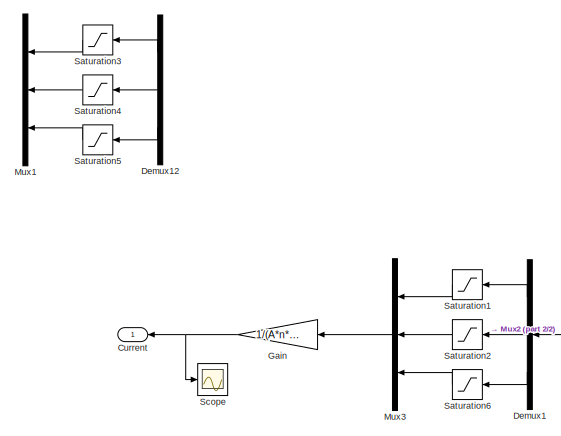
[diagram: StarshotACS/Orientation controller - part 1/2, left side, full height]
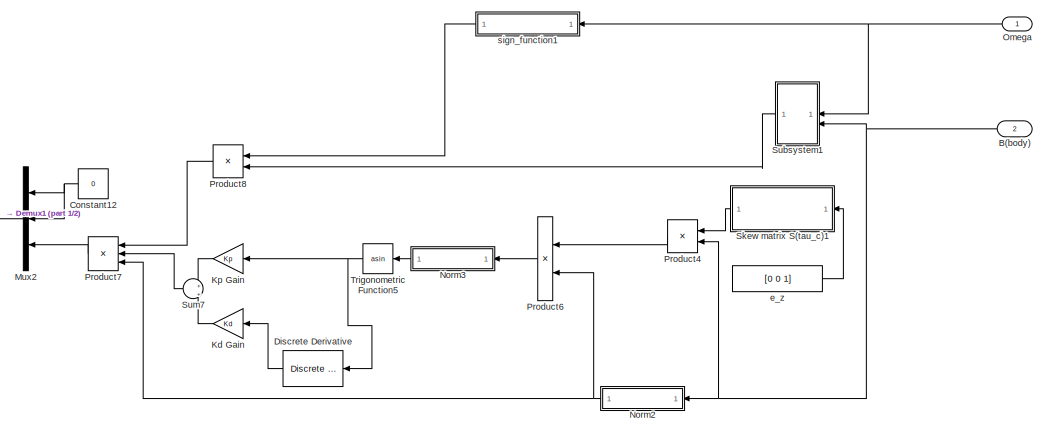
[diagram: StarshotACS/Orientation controller - part 2/2, right side, full height]
BLOCK [SubSystem] StarshotACS/Orientation controller
BLOCK [Inport] StarshotACS/Orientation controller/B(body)
  NameLocation = top
  Port = 2
BLOCK [Constant] StarshotACS/Orientation controller/Constant12
  Value = 0
BLOCK [Outport] StarshotACS/Orientation controller/Current
BLOCK [Demux] StarshotACS/Orientation controller/Demux1
  Outputs = 3
BLOCK [Demux] StarshotACS/Orientation controller/Demux12
  Commented = on
  Outputs = 3
BLOCK [Reference] StarshotACS/Orientation controller/Discrete Derivative  REF=simulink/Discrete/Discrete Derivative
  NameLocation = top
  SourceBlock = simulink/Discrete/Discrete Derivative
  SourceType = Discrete Derivative
BLOCK [Gain] StarshotACS/Orientation controller/Gain
  Gain = 1/(A*n*k)
  NameLocation = top
BLOCK [Gain] StarshotACS/Orientation controller/Kd Gain
  Gain = Kd
BLOCK [Gain] StarshotACS/Orientation controller/Kp Gain
  Gain = Kp
BLOCK [Mux] StarshotACS/Orientation controller/Mux1
  Commented = on
  DisplayOption = bar
  Inputs = 3
BLOCK [Mux] StarshotACS/Orientation controller/Mux2
  DisplayOption = bar
  Inputs = 3
BLOCK [Mux] StarshotACS/Orientation controller/Mux3
  DisplayOption = bar
  Inputs = 3
BLOCK [SubSystem] StarshotACS/Orientation controller/Norm2
BLOCK [DotProduct] StarshotACS/Orientation controller/Norm2/Dot Product6
  OutDataTypeStr = Inherit: Inherit via internal rule
BLOCK [Sqrt] StarshotACS/Orientation controller/Norm2/Sqrt4
BLOCK [Outport] StarshotACS/Orientation controller/Norm2/norm(v)
BLOCK [Inport] StarshotACS/Orientation controller/Norm2/v
BLOCK [SubSystem] StarshotACS/Orientation controller/Norm3
BLOCK [DotProduct] StarshotACS/Orientation controller/Norm3/Dot Product6
  OutDataTypeStr = Inherit: Inherit via internal rule
BLOCK [Sqrt] StarshotACS/Orientation controller/Norm3/Sqrt4
BLOCK [Outport] StarshotACS/Orientation controller/Norm3/norm(v)
BLOCK [Inport] StarshotACS/Orientation controller/Norm3/v
BLOCK [Inport] StarshotACS/Orientation controller/Omega
BLOCK [Product] StarshotACS/Orientation controller/Product4
  Multiplication = Matrix(*)
BLOCK [Product] StarshotACS/Orientation controller/Product6
  Inputs = */
BLOCK [Product] StarshotACS/Orientation controller/Product7
  Inputs = **/
BLOCK [Product] StarshotACS/Orientation controller/Product8
  Inputs = **
BLOCK [Saturate] StarshotACS/Orientation controller/Saturation1
  LowerLimit = -k*i_max*A*n
  UpperLimit = k*i_max*A*n
BLOCK [Saturate] StarshotACS/Orientation controller/Saturation2
  LowerLimit = -k*i_max*A*n
  UpperLimit = k*i_max*A*n
BLOCK [Saturate] StarshotACS/Orientation controller/Saturation3
  Commented = on
  LowerLimit = -0.250
  UpperLimit = 0.250
BLOCK [Saturate] StarshotACS/Orientation controller/Saturation4
  Commented = on
  LowerLimit = -0.250
  UpperLimit = 0.250
BLOCK [Saturate] StarshotACS/Orientation controller/Saturation5
  Commented = on
  LowerLimit = -0.250
  UpperLimit = 0.250
BLOCK [Saturate] StarshotACS/Orientation controller/Saturation6
  LowerLimit = -k*i_max*A*n
  UpperLimit = k*i_max*A*n
BLOCK [Scope] StarshotACS/Orientation controller/Scope
  Floating = off
  NumInputPorts = 1
  ScopeSpecificationString = Simulink.scopes.TimeScopeBlockCfg
BLOCK [SubSystem] StarshotACS/Orientation controller/Skew matrix S(tau_c)1
BLOCK [Constant] StarshotACS/Orientation controller/Skew matrix S(tau_c)1/Constant3
  Value = 0
BLOCK [Demux] StarshotACS/Orientation controller/Skew matrix S(tau_c)1/Demux
  Outputs = 3
BLOCK [Gain] StarshotACS/Orientation controller/Skew matrix S(tau_c)1/Gain
  Gain = -1
BLOCK [Gain] StarshotACS/Orientation controller/Skew matrix S(tau_c)1/Gain1
  Gain = -1
BLOCK [Gain] StarshotACS/Orientation controller/Skew matrix S(tau_c)1/Gain2
  Gain = -1
BLOCK [Mux] StarshotACS/Orientation controller/Skew matrix S(tau_c)1/Mux
  DisplayOption = bar
  Inputs = 3
BLOCK [Mux] StarshotACS/Orientation controller/Skew matrix S(tau_c)1/Mux1
  DisplayOption = bar
  Inputs = 3
BLOCK [Mux] StarshotACS/Orientation controller/Skew matrix S(tau_c)1/Mux2
  DisplayOption = bar
  Inputs = 3
BLOCK [Outport] StarshotACS/Orientation controller/Skew matrix S(tau_c)1/S(omega)
BLOCK [Concatenate] StarshotACS/Orientation controller/Skew matrix S(tau_c)1/Vector Concatenate
  ConcatenateDimension = 2
  Mode = Multidimensional array
  NumInputs = 3
BLOCK [Inport] StarshotACS/Orientation controller/Skew matrix S(tau_c)1/omega
BLOCK [SubSystem] StarshotACS/Orientation controller/Subsystem1
BLOCK [Sum] StarshotACS/Orientation controller/Subsystem1/Add
  IconShape = rectangular
  Inputs = 3
BLOCK [Inport] StarshotACS/Orientation controller/Subsystem1/B(body)
  NameLocation = top
  Port = 2
BLOCK [Constant] StarshotACS/Orientation controller/Subsystem1/Constant3
BLOCK [Constant] StarshotACS/Orientation controller/Subsystem1/Constant4
  Value = -1
BLOCK [Demux] StarshotACS/Orientation controller/Subsystem1/Demux11
  Outputs = 3
BLOCK [Product] StarshotACS/Orientation controller/Subsystem1/Divide6
  Inputs = /*/
BLOCK [SubSystem] StarshotACS/Orientation controller/Subsystem1/Norm4
BLOCK [DotProduct] StarshotACS/Orientation controller/Subsystem1/Norm4/Dot Product6
  OutDataTypeStr = Inherit: Inherit via internal rule
BLOCK [Sqrt] StarshotACS/Orientation controller/Subsystem1/Norm4/Sqrt4
BLOCK [Outport] StarshotACS/Orientation controller/Subsystem1/Norm4/norm(v)
BLOCK [Inport] StarshotACS/Orientation controller/Subsystem1/Norm4/v
BLOCK [SubSystem] StarshotACS/Orientation controller/Subsystem1/Norm5
  NameLocation = left
BLOCK [DotProduct] StarshotACS/Orientation controller/Subsystem1/Norm5/Dot Product6
  OutDataTypeStr = Inherit: Inherit via internal rule
BLOCK [Sqrt] StarshotACS/Orientation controller/Subsystem1/Norm5/Sqrt4
BLOCK [Outport] StarshotACS/Orientation controller/Subsystem1/Norm5/norm(v)
BLOCK [Inport] StarshotACS/Orientation controller/Subsystem1/Norm5/v
BLOCK [Product] StarshotACS/Orientation controller/Subsystem1/Product3
BLOCK [Switch] StarshotACS/Orientation controller/Subsystem1/Switch
  Criteria = u2 > Threshold
  InputSameDT = off
  SaturateOnIntegerOverflow = off
  ZeroCross = off
BLOCK [Inport] StarshotACS/Orientation controller/Subsystem1/omega
BLOCK [Outport] StarshotACS/Orientation controller/Subsystem1/sign(cos)
BLOCK [Sum] StarshotACS/Orientation controller/Sum7
  Inputs = +|+
BLOCK [Trigonometry] StarshotACS/Orientation controller/Trigonometric Function5
  Operator = asin
BLOCK [Constant] StarshotACS/Orientation controller/e_z
  Value = [0 0 1]
BLOCK [SubSystem] StarshotACS/Orientation controller/sign_function1
BLOCK [Constant] StarshotACS/Orientation controller/sign_function1/Constant10
  Value = -1
BLOCK [Constant] StarshotACS/Orientation controller/sign_function1/Constant9
BLOCK [Selector] StarshotACS/Orientation controller/sign_function1/Selector
  IndexOptions = Index vector (dialog)
  Indices = [3]
  InputPortWidth = 3
  OutputSizes = 1
BLOCK [Switch] StarshotACS/Orientation controller/sign_function1/Switch1
  InputSameDT = off
  SaturateOnIntegerOverflow = off
  ZeroCross = off
BLOCK [Inport] StarshotACS/Orientation controller/sign_function1/omega
BLOCK [Outport] StarshotACS/Orientation controller/sign_function1/sign(omega_z)
BLOCK [SubSystem] StarshotACS/Point Error
BLOCK [Trigonometry] StarshotACS/Point Error/Acos
  Operator = acos
BLOCK [Inport] StarshotACS/Point Error/B_body
BLOCK [Constant] StarshotACS/Point Error/Constant
  Value = [0,0,1]
BLOCK [DotProduct] StarshotACS/Point Error/Dot Product
  OutDataTypeStr = Inherit: Inherit via internal rule
BLOCK [Gain] StarshotACS/Point Error/Multiply
  Gain = 180/pi
BLOCK [Reference] StarshotACS/Point Error/Normalization  REF=dspmathops/Normalization
  SourceBlock = dspmathops/Normalization
  SourceType = Normalization
BLOCK [Saturate] StarshotACS/Point Error/Saturation3
  LowerLimit = -1
  UpperLimit = 1
BLOCK [Outport] StarshotACS/Point Error/pt error
BLOCK [Inport] StarshotACS/angularvelocity
BLOCK [Outport] StarshotACS/detumble
BLOCK [Outport] StarshotACS/point
  Port = 2
BLOCK [Outport] StarshotACS/pt_error
  Port = 3
BLOCK [Terminator] Terminator1
BLOCK [Terminator] Terminator2
BLOCK [Scope] filtered
  Floating = off
  NumInputPorts = 1
  ScopeSpecificationString = Simulink.scopes.TimeScopeBlockCfg('CurrentConfiguration', extmgr.ConfigurationSet(extmgr.Configuration('Core','General UI',true),extmgr.Configuration('Core','Source UI',true),extmgr.Configuration('Sources','WiredSimulink',true,'DataLoggingVariableName','ScopeData2'),extmgr.Configuration('Visuals','Time Domain',true,'SerializedDisplays',{struct('MinYLimReal','-0.00128','MaxYLimReal','0.00272','YLab...<+1510ch>
BLOCK [Scope] filtered w
  Floating = off
  NumInputPorts = 1
  ScopeSpecificationString = Simulink.scopes.TimeScopeBlockCfg('CurrentConfiguration', extmgr.ConfigurationSet(extmgr.Configuration('Core','General UI',true),extmgr.Configuration('Core','Source UI',true),extmgr.Configuration('Sources','WiredSimulink',true,'DataLoggingVariableName','ScopeData3'),extmgr.Configuration('Visuals','Time Domain',true,'SerializedDisplays',{struct('MinYLimReal','-0.61993','MaxYLimReal','1.29605','YLab...<+1416ch>
BLOCK [Scope] ideal
  Floating = off
  NumInputPorts = 1
  ScopeSpecificationString = Simulink.scopes.TimeScopeBlockCfg('CurrentConfiguration', extmgr.ConfigurationSet(extmgr.Configuration('Core','General UI',true),extmgr.Configuration('Core','Source UI',true),extmgr.Configuration('Sources','WiredSimulink',true,'DataLoggingVariableName','ScopeData1'),extmgr.Configuration('Visuals','Time Domain',true,'SerializedDisplays',{struct('MinYLimReal','-0.00016','MaxYLimReal','0.00016','YLab...<+1421ch>
BLOCK [Scope] ideal w
  Floating = off
  NumInputPorts = 1
  ScopeSpecificationString = Simulink.scopes.TimeScopeBlockCfg('CurrentConfiguration', extmgr.ConfigurationSet(extmgr.Configuration('Core','General UI',true),extmgr.Configuration('Core','Source UI',true),extmgr.Configuration('Sources','WiredSimulink',true,'DataLoggingVariableName','ScopeData1'),extmgr.Configuration('Visuals','Time Domain',true,'SerializedDisplays',{struct('MinYLimReal','-0.62021','MaxYLimReal','1.29649','YLab...<+1447ch>
BLOCK [Scope] noisy
  Floating = off
  NumInputPorts = 1
  ScopeSpecificationString = Simulink.scopes.TimeScopeBlockCfg('CurrentConfiguration', extmgr.ConfigurationSet(extmgr.Configuration('Core','General UI',true),extmgr.Configuration('Core','Source UI',true),extmgr.Configuration('Sources','WiredSimulink',true,'DataLoggingVariableName','ScopeData3'),extmgr.Configuration('Visuals','Time Domain',true,'SerializedDisplays',{struct('MinYLimReal','-1.87213','MaxYLimReal','3.08861','YLab...<+1488ch>
BLOCK [Scope] nosiy w
  Floating = off
  NumInputPorts = 1
  ScopeSpecificationString = Simulink.scopes.TimeScopeBlockCfg('CurrentConfiguration', extmgr.ConfigurationSet(extmgr.Configuration('Core','General UI',true),extmgr.Configuration('Core','Source UI',true),extmgr.Configuration('Sources','WiredSimulink',true,'DataLoggingVariableName','ScopeData2'),extmgr.Configuration('Visuals','Time Domain',true,'SerializedDisplays',{struct('MinYLimReal','-0.21031','MaxYLimReal','1.13448','YLab...<+1421ch>
BLOCK [Scope] pt_error
  Floating = off
  NameLocation = top
  NumInputPorts = 1
  ScopeSpecificationString = Simulink.scopes.TimeScopeBlockCfg('CurrentConfiguration', extmgr.ConfigurationSet(extmgr.Configuration('Core','General UI',true),extmgr.Configuration('Core','Source UI',true),extmgr.Configuration('Sources','WiredSimulink',true,'DataLoggingVariableName','ScopeData5'),extmgr.Configuration('Visuals','Time Domain',true,'SerializedDisplays',{struct('MinYLimReal','-13.68659','MaxYLimReal','168.91319','Y...<+1411ch>
BLOCK [Scope] pt_error plant
  Commented = on
  Floating = off
  NumInputPorts = 1
  ScopeSpecificationString = Simulink.scopes.TimeScopeBlockCfg('CurrentConfiguration', extmgr.ConfigurationSet(extmgr.Configuration('Core','General UI',true),extmgr.Configuration('Core','Source UI',true),extmgr.Configuration('Sources','WiredSimulink',true,'DataLoggingVariableName','ScopeData2'),extmgr.Configuration('Visuals','Time Domain',true,'SerializedDisplays',{struct('MinYLimReal','71.62118','MaxYLimReal','191.87895','YL...<+1409ch>
ANNOTATION Plant_OG(Davide's Original): Kinematics
ANNOTATION Plant_OG(Davide's Original): Dynamics
ANNOTATION Plant_OG(Davide's Original): Earth's magnetic dipole
ANNOTATION Plant_OG(Davide's Original): Torque
ANNOTATION StarshotACS/KD_controller: moment->current
LINE Duty-Cycle/Current In:1 -> Duty-Cycle/Demux1:1
LINE Duty-Cycle/Demux1:1 -> Duty-Cycle/Mux3:1
LINE Duty-Cycle/Demux1:2 -> Duty-Cycle/Mux3:2
LINE Duty-Cycle/Demux1:3 -> Duty-Cycle/Product:1
LINE Duty-Cycle/Duty-cycle input:1 -> Duty-Cycle/PWM1:1
LINE Duty-Cycle/Mux3:1 -> Duty-Cycle/Current Out:1
LINE Duty-Cycle/PWM1:1 -> Duty-Cycle/Product:2
LINE Duty-Cycle/Product:1 -> Duty-Cycle/Mux3:3
LINE EKF/Demux:1 -> EKF/filter_mag:1
LINE EKF/Demux:2 -> EKF/filter_w:1
LINE EKF/EKF/EKF_Primary/J:1 -> EKF/EKF/EKF_Primary/Kalman predictor:1
NET EKF/EKF/EKF_Primary/Kalman corrector:1 -> EKF/EKF/EKF_Primary/Unit Delay - X:1, EKF/EKF/EKF_Primary/Xhat:1
NET EKF/EKF/EKF_Primary/Kalman corrector:2 -> EKF/EKF/EKF_Primary/Unit Delay - P:1, EKF/EKF/EKF_Primary/sqrt(Pii):1
LINE EKF/EKF/EKF_Primary/Kalman predictor:1 -> EKF/EKF/EKF_Primary/Kalman corrector:2
LINE EKF/EKF/EKF_Primary/Kalman predictor:2 -> EKF/EKF/EKF_Primary/Kalman corrector:3
LINE EKF/EKF/EKF_Primary/Unit Delay - P:1 -> EKF/EKF/EKF_Primary/Kalman predictor:3
LINE EKF/EKF/EKF_Primary/Unit Delay - X:1 -> EKF/EKF/EKF_Primary/Kalman predictor:2
NET EKF/EKF/EKF_Primary/Z:1 -> EKF/EKF/EKF_Primary/Kalman corrector:1, EKF/EKF/EKF_Primary/To Workspace:1
LINE EKF/EKF/EKF_Primary/sqrt(Pii):1 -> EKF/EKF/EKF_Primary/sqrtPii:1
NET EKF/EKF/EKF_Primary:1 -> EKF/EKF/Scope:2, EKF/EKF/Xhat:1
LINE EKF/EKF/EKF_Primary:2 -> EKF/EKF/Diag:1
LINE EKF/EKF/Jacobian:1 -> EKF/EKF/EKF_Primary:2
NET EKF/EKF/Vector Concatenate:1 -> EKF/EKF/EKF_Primary:1, EKF/EKF/Scope:1
NET EKF/EKF/angular velocity:1 -> EKF/EKF/Jacobian:2, EKF/EKF/Vector Concatenate:2
NET EKF/EKF/x_n:1 -> EKF/EKF/Jacobian:1, EKF/EKF/Vector Concatenate:1
LINE EKF/EKF:1 -> EKF/Demux:1
LINE EKF/raw_mag:1 -> EKF/EKF:1
LINE EKF/raw_w:1 -> EKF/EKF:2
NET EKF:1 -> StarshotACS:1, filtered w:1
NET EKF:2 -> StarshotACS:2, filtered:1
NET Manual Switch:1 -> Current:1, Plant:1
LINE Noise/Gyroscope Noise/From Workspace:1 -> Noise/Gyroscope Noise/Gain2:1
LINE Noise/Gyroscope Noise/Gain2:1 -> Noise/Gyroscope Noise/Sum2:1
LINE Noise/Gyroscope Noise/Sum2:1 -> Noise/Gyroscope Noise/x_n:1
LINE Noise/Gyroscope Noise/x_i:1 -> Noise/Gyroscope Noise/Sum2:2
LINE Noise/Gyroscope Noise:1 -> Noise/noisy w:1
NET Noise/Magnetometer Noise/Demux:1 -> Noise/Magnetometer Noise/Scope:1, Noise/Magnetometer Noise/To Workspace:1
LINE Noise/Magnetometer Noise/From Workspace:1 -> Noise/Magnetometer Noise/Gain2:1
NET Noise/Magnetometer Noise/Gain2:1 -> Noise/Magnetometer Noise/Demux:1, Noise/Magnetometer Noise/Sum2:1
LINE Noise/Magnetometer Noise/Sum2:1 -> Noise/Magnetometer Noise/x_n:1
LINE Noise/Magnetometer Noise/x_i:1 -> Noise/Magnetometer Noise/Sum2:2
LINE Noise/Magnetometer Noise:1 -> Noise/nosiy mag:1
LINE Noise/ideal mag:1 -> Noise/Magnetometer Noise:1
LINE Noise/ideal w:1 -> Noise/Gyroscope Noise:1
NET Noise:1 -> EKF:1, nosiy w:1
NET Noise:2 -> EKF:2, noisy:1
LINE Plant/Cross Product:1 -> Plant/Dynamics:2
LINE Plant/Demux4:1 -> Plant/Discrete-Time Integrator:1
LINE Plant/Demux4:2 -> Plant/Discrete-Time Integrator1:1
LINE Plant/Demux4:3 -> Plant/Discrete-Time Integrator2:1
LINE Plant/Demux:1 -> Plant/Scope:1
LINE Plant/Demux:2 -> Plant/Scope:2
LINE Plant/Demux:3 -> Plant/Scope:3
LINE Plant/Discrete-Time Integrator1:1 -> Plant/Mux3:2
LINE Plant/Discrete-Time Integrator2:1 -> Plant/Mux3:3
LINE Plant/Discrete-Time Integrator:1 -> Plant/Mux3:1
NET Plant/Dynamics/Angular Velocity:1 -> Plant/Dynamics/Cross Product:1, Plant/Dynamics/Product:2
LINE Plant/Dynamics/Constant1:1 -> Plant/Dynamics/Product1:1
LINE Plant/Dynamics/Constant:1 -> Plant/Dynamics/Product:1
LINE Plant/Dynamics/Cross Product:1 -> Plant/Dynamics/Sum:2
LINE Plant/Dynamics/External Torque:1 -> Plant/Dynamics/Sum:1
LINE Plant/Dynamics/Product1:1 -> Plant/Dynamics/Angular Accel:1
LINE Plant/Dynamics/Product:1 -> Plant/Dynamics/Cross Product:2
LINE Plant/Dynamics/Sum:1 -> Plant/Dynamics/Product1:2
LINE Plant/Dynamics:1 -> Plant/Demux4:1
LINE Plant/Gain:1 -> Plant/Cross Product:1
LINE Plant/Magnetic Field Model/Constant1:1 -> Plant/Magnetic Field Model/Divide2:1
LINE Plant/Magnetic Field Model/Constant8:1 -> Plant/Magnetic Field Model/Sum5:1
NET Plant/Magnetic Field Model/Demux7:1 -> Plant/Magnetic Field Model/Math Function4:1, Plant/Magnetic Field Model/Math Function5:1
NET Plant/Magnetic Field Model/Demux7:2 -> Plant/Magnetic Field Model/Math Function3:1, Plant/Magnetic Field Model/Math Function6:1
NET Plant/Magnetic Field Model/Demux7:3 -> Plant/Magnetic Field Model/Math Function7:1, Plant/Magnetic Field Model/Trigonometric Function3:1
NET Plant/Magnetic Field Model/Dipole->ECI/-theta:1 -> Plant/Magnetic Field Model/Dipole->ECI/Trigonometric Function5:1, Plant/Magnetic Field Model/Dipole->ECI/Trigonometric Function6:1, Plant/Magnetic Field Model/Dipole->ECI/Trigonometric Function7:1, Plant/Magnetic Field Model/Dipole->ECI/Trigonometric Function8:1
LINE Plant/Magnetic Field Model/Dipole->ECI/B_r,B_theta:1 -> Plant/Magnetic Field Model/Dipole->ECI/Demux8:1
NET Plant/Magnetic Field Model/Dipole->ECI/Demux8:1 -> Plant/Magnetic Field Model/Dipole->ECI/Product1:2, Plant/Magnetic Field Model/Dipole->ECI/Product3:2
NET Plant/Magnetic Field Model/Dipole->ECI/Demux8:2 -> Plant/Magnetic Field Model/Dipole->ECI/Product2:2, Plant/Magnetic Field Model/Dipole->ECI/Product4:2
LINE Plant/Magnetic Field Model/Dipole->ECI/Demux:1 -> Plant/Magnetic Field Model/Dipole->ECI/Trigonometric Function:2
LINE Plant/Magnetic Field Model/Dipole->ECI/Demux:2 -> Plant/Magnetic Field Model/Dipole->ECI/Trigonometric Function:1
LINE Plant/Magnetic Field Model/Dipole->ECI/Demux:3 -> Plant/Magnetic Field Model/Dipole->ECI/Terminator:1
LINE Plant/Magnetic Field Model/Dipole->ECI/Divide1:1 -> Plant/Magnetic Field Model/Dipole->ECI/Mux:1
LINE Plant/Magnetic Field Model/Dipole->ECI/Divide:1 -> Plant/Magnetic Field Model/Dipole->ECI/Mux:2
LINE Plant/Magnetic Field Model/Dipole->ECI/Mux:1 -> Plant/Magnetic Field Model/Dipole->ECI/B:1
LINE Plant/Magnetic Field Model/Dipole->ECI/Product1:1 -> Plant/Magnetic Field Model/Dipole->ECI/Sum5:1
LINE Plant/Magnetic Field Model/Dipole->ECI/Product2:1 -> Plant/Magnetic Field Model/Dipole->ECI/Sum5:2
LINE Plant/Magnetic Field Model/Dipole->ECI/Product3:1 -> Plant/Magnetic Field Model/Dipole->ECI/Sum6:2
LINE Plant/Magnetic Field Model/Dipole->ECI/Product4:1 -> Plant/Magnetic Field Model/Dipole->ECI/Sum6:1
LINE Plant/Magnetic Field Model/Dipole->ECI/Sum5:1 -> Plant/Magnetic Field Model/Dipole->ECI/Mux:3
NET Plant/Magnetic Field Model/Dipole->ECI/Sum6:1 -> Plant/Magnetic Field Model/Dipole->ECI/Divide1:1, Plant/Magnetic Field Model/Dipole->ECI/Divide:1
LINE Plant/Magnetic Field Model/Dipole->ECI/Trigonometric Function1:1 -> Plant/Magnetic Field Model/Dipole->ECI/Divide1:2
LINE Plant/Magnetic Field Model/Dipole->ECI/Trigonometric Function2:1 -> Plant/Magnetic Field Model/Dipole->ECI/Divide:2
LINE Plant/Magnetic Field Model/Dipole->ECI/Trigonometric Function5:1 -> Plant/Magnetic Field Model/Dipole->ECI/Product1:1
LINE Plant/Magnetic Field Model/Dipole->ECI/Trigonometric Function6:1 -> Plant/Magnetic Field Model/Dipole->ECI/Product2:1
LINE Plant/Magnetic Field Model/Dipole->ECI/Trigonometric Function7:1 -> Plant/Magnetic Field Model/Dipole->ECI/Product3:1
LINE Plant/Magnetic Field Model/Dipole->ECI/Trigonometric Function8:1 -> Plant/Magnetic Field Model/Dipole->ECI/Product4:1
NET Plant/Magnetic Field Model/Dipole->ECI/Trigonometric Function:1 -> Plant/Magnetic Field Model/Dipole->ECI/Trigonometric Function1:1, Plant/Magnetic Field Model/Dipole->ECI/Trigonometric Function2:1
LINE Plant/Magnetic Field Model/Dipole->ECI/r:1 -> Plant/Magnetic Field Model/Dipole->ECI/Demux:1
LINE Plant/Magnetic Field Model/Dipole->ECI:1 -> Plant/Magnetic Field Model/ECI_B:1
NET Plant/Magnetic Field Model/Divide2:1 -> Plant/Magnetic Field Model/Math Function8:1, Plant/Magnetic Field Model/Product:2
LINE Plant/Magnetic Field Model/Divide3:1 -> Plant/Magnetic Field Model/Mux4:1
LINE Plant/Magnetic Field Model/Divide4:1 -> Plant/Magnetic Field Model/Mux4:2
NET Plant/Magnetic Field Model/ECIxyz:1 -> Plant/Magnetic Field Model/Demux7:1, Plant/Magnetic Field Model/Dipole->ECI:3
NET Plant/Magnetic Field Model/Gain4:1 -> Plant/Magnetic Field Model/Divide4:1, Plant/Magnetic Field Model/Gain5:1
LINE Plant/Magnetic Field Model/Gain5:1 -> Plant/Magnetic Field Model/Divide3:1
LINE Plant/Magnetic Field Model/Gain6:1 -> Plant/Magnetic Field Model/Dipole->ECI:2
LINE Plant/Magnetic Field Model/Math Function3:1 -> Plant/Magnetic Field Model/Sum3:2
LINE Plant/Magnetic Field Model/Math Function4:1 -> Plant/Magnetic Field Model/Sum3:1
LINE Plant/Magnetic Field Model/Math Function5:1 -> Plant/Magnetic Field Model/Sum4:1
LINE Plant/Magnetic Field Model/Math Function6:1 -> Plant/Magnetic Field Model/Sum4:2
LINE Plant/Magnetic Field Model/Math Function7:1 -> Plant/Magnetic Field Model/Sum4:3
LINE Plant/Magnetic Field Model/Math Function8:1 -> Plant/Magnetic Field Model/Product:1
LINE Plant/Magnetic Field Model/Mux4:1 -> Plant/Magnetic Field Model/Dipole->ECI:1
LINE Plant/Magnetic Field Model/Product:1 -> Plant/Magnetic Field Model/Gain4:1
LINE Plant/Magnetic Field Model/Sqrt2:1 -> Plant/Magnetic Field Model/Trigonometric Function3:2
LINE Plant/Magnetic Field Model/Sqrt3:1 -> Plant/Magnetic Field Model/Divide2:2
LINE Plant/Magnetic Field Model/Sum3:1 -> Plant/Magnetic Field Model/Sqrt2:1
LINE Plant/Magnetic Field Model/Sum4:1 -> Plant/Magnetic Field Model/Sqrt3:1
NET Plant/Magnetic Field Model/Sum5:1 -> Plant/Magnetic Field Model/Gain6:1, Plant/Magnetic Field Model/Trigonometric Function2:1, Plant/Magnetic Field Model/Trigonometric Function4:1
LINE Plant/Magnetic Field Model/Trigonometric Function2:1 -> Plant/Magnetic Field Model/Divide3:2
LINE Plant/Magnetic Field Model/Trigonometric Function3:1 -> Plant/Magnetic Field Model/Sum5:2
LINE Plant/Magnetic Field Model/Trigonometric Function4:1 -> Plant/Magnetic Field Model/Divide4:2
NET Plant/Magnetic Field Model:1 -> Plant/Matrix Multiply1:2, Plant/Matrix Multiply:2
LINE Plant/Matrix Multiply1:1 -> Plant/Cross Product:2
LINE Plant/Matrix Multiply:1 -> Plant/magnetic field:1
NET Plant/Mux3:1 -> Plant/Dynamics:1, Plant/Quaternion Integration:1, Plant/angular velocity:1
LINE Plant/Quaternion Integration/Discrete-Time Integrator1:1 -> Plant/Quaternion Integration/q_normalize:1
LINE Plant/Quaternion Integration/q_normalize/Dot Product:1 -> Plant/Quaternion Integration/q_normalize/Math Function:1
LINE Plant/Quaternion Integration/q_normalize/Math Function:1 -> Plant/Quaternion Integration/q_normalize/Product:2
LINE Plant/Quaternion Integration/q_normalize/Product:1 -> Plant/Quaternion Integration/q_normalize/q_out:1
NET Plant/Quaternion Integration/q_normalize/q_in:1 -> Plant/Quaternion Integration/q_normalize/Dot Product:1, Plant/Quaternion Integration/q_normalize/Dot Product:2, Plant/Quaternion Integration/q_normalize/Product:1
NET Plant/Quaternion Integration/q_normalize:1 -> Plant/Quaternion Integration/q_B//N:1, Plant/Quaternion Integration/qderiv:2
LINE Plant/Quaternion Integration/qderiv/Mux1:1 -> Plant/Quaternion Integration/qderiv/qd:1
NET Plant/Quaternion Integration/qderiv/Mux:1 -> Plant/Quaternion Integration/qderiv/qd1:1, Plant/Quaternion Integration/qderiv/qd2:1, Plant/Quaternion Integration/qderiv/qd3:1, Plant/Quaternion Integration/qderiv/qd4:1
LINE Plant/Quaternion Integration/qderiv/q:1 -> Plant/Quaternion Integration/qderiv/Mux:2
LINE Plant/Quaternion Integration/qderiv/qd1:1 -> Plant/Quaternion Integration/qderiv/Mux1:1
LINE Plant/Quaternion Integration/qderiv/qd2:1 -> Plant/Quaternion Integration/qderiv/Mux1:2
LINE Plant/Quaternion Integration/qderiv/qd3:1 -> Plant/Quaternion Integration/qderiv/Mux1:3
LINE Plant/Quaternion Integration/qderiv/qd4:1 -> Plant/Quaternion Integration/qderiv/Mux1:4
LINE Plant/Quaternion Integration/qderiv/w:1 -> Plant/Quaternion Integration/qderiv/Mux:1
LINE Plant/Quaternion Integration/qderiv:1 -> Plant/Quaternion Integration/Discrete-Time Integrator1:1
LINE Plant/Quaternion Integration/w B//N:1 -> Plant/Quaternion Integration/qderiv:1
NET Plant/Quaternion Integration:1 -> Plant/qtoQ1:1, Plant/qtoQ:1, Plant/quaternion:1
LINE Plant/Tranlational Dynamics/Constant:1 -> Plant/Tranlational Dynamics/Gain1:1
NET Plant/Tranlational Dynamics/Demux1:1 -> Plant/Tranlational Dynamics/Dot Product:1, Plant/Tranlational Dynamics/Dot Product:2
NET Plant/Tranlational Dynamics/Demux1:2 -> Plant/Tranlational Dynamics/Dot Product1:1, Plant/Tranlational Dynamics/Dot Product1:2
NET Plant/Tranlational Dynamics/Demux1:3 -> Plant/Tranlational Dynamics/Dot Product2:1, Plant/Tranlational Dynamics/Dot Product2:2
LINE Plant/Tranlational Dynamics/Demux2:1 -> Plant/Tranlational Dynamics/Dot Product5:2
LINE Plant/Tranlational Dynamics/Demux2:2 -> Plant/Tranlational Dynamics/Dot Product4:2
LINE Plant/Tranlational Dynamics/Demux2:3 -> Plant/Tranlational Dynamics/Dot Product3:2
LINE Plant/Tranlational Dynamics/Demux:1 -> Plant/Tranlational Dynamics/Discrete-Time Integrator4:1
LINE Plant/Tranlational Dynamics/Demux:2 -> Plant/Tranlational Dynamics/Discrete-Time Integrator5:1
LINE Plant/Tranlational Dynamics/Demux:3 -> Plant/Tranlational Dynamics/Discrete-Time Integrator6:1
LINE Plant/Tranlational Dynamics/Discrete-Time Integrator1:1 -> Plant/Tranlational Dynamics/Mux1:2
LINE Plant/Tranlational Dynamics/Discrete-Time Integrator2:1 -> Plant/Tranlational Dynamics/Mux1:1
LINE Plant/Tranlational Dynamics/Discrete-Time Integrator3:1 -> Plant/Tranlational Dynamics/Mux1:3
LINE Plant/Tranlational Dynamics/Discrete-Time Integrator4:1 -> Plant/Tranlational Dynamics/Mux:1
LINE Plant/Tranlational Dynamics/Discrete-Time Integrator5:1 -> Plant/Tranlational Dynamics/Mux:2
LINE Plant/Tranlational Dynamics/Discrete-Time Integrator6:1 -> Plant/Tranlational Dynamics/Mux:3
LINE Plant/Tranlational Dynamics/Divide1:1 -> Plant/Tranlational Dynamics/Demux2:1
NET Plant/Tranlational Dynamics/Divide:1 -> Plant/Tranlational Dynamics/Dot Product3:1, Plant/Tranlational Dynamics/Dot Product4:1, Plant/Tranlational Dynamics/Dot Product5:1
LINE Plant/Tranlational Dynamics/Dot Product1:1 -> Plant/Tranlational Dynamics/Sum:2
LINE Plant/Tranlational Dynamics/Dot Product2:1 -> Plant/Tranlational Dynamics/Sum:3
LINE Plant/Tranlational Dynamics/Dot Product3:1 -> Plant/Tranlational Dynamics/Discrete-Time Integrator3:1
LINE Plant/Tranlational Dynamics/Dot Product4:1 -> Plant/Tranlational Dynamics/Discrete-Time Integrator1:1
LINE Plant/Tranlational Dynamics/Dot Product5:1 -> Plant/Tranlational Dynamics/Discrete-Time Integrator2:1
LINE Plant/Tranlational Dynamics/Dot Product:1 -> Plant/Tranlational Dynamics/Sum:1
LINE Plant/Tranlational Dynamics/Gain1:1 -> Plant/Tranlational Dynamics/Gain2:1
LINE Plant/Tranlational Dynamics/Gain2:1 -> Plant/Tranlational Dynamics/Divide:2
LINE Plant/Tranlational Dynamics/Math Function:1 -> Plant/Tranlational Dynamics/Divide:1
LINE Plant/Tranlational Dynamics/Mux1:1 -> Plant/Tranlational Dynamics/Demux:1
NET Plant/Tranlational Dynamics/Mux:1 -> Plant/Tranlational Dynamics/Demux1:1, Plant/Tranlational Dynamics/Divide1:2, Plant/Tranlational Dynamics/ECIxyz:1
NET Plant/Tranlational Dynamics/Sqrt:1 -> Plant/Tranlational Dynamics/Divide1:1, Plant/Tranlational Dynamics/Math Function:1
LINE Plant/Tranlational Dynamics/Sum:1 -> Plant/Tranlational Dynamics/Sqrt:1
NET Plant/Tranlational Dynamics:1 -> Plant/Demux:1, Plant/Magnetic Field Model:1, Plant/xyzposition:1
LINE Plant/current:1 -> Plant/Gain:1
LINE Plant/qtoQ/Demux:1 -> Plant/qtoQ/Mux:1
LINE Plant/qtoQ/Demux:2 -> Plant/qtoQ/Mux:2
LINE Plant/qtoQ/Demux:3 -> Plant/qtoQ/Mux:3
NET Plant/qtoQ/Demux:4 -> Plant/qtoQ/Product1:1, Plant/qtoQ/Product1:2, Plant/qtoQ/Product:2
LINE Plant/qtoQ/Gain1:1 -> Plant/qtoQ/Sum8:2
LINE Plant/qtoQ/Gain2:1 -> Plant/qtoQ/Sum8:1
LINE Plant/qtoQ/Matrix Gain:1 -> Plant/qtoQ/Sum8:3
NET Plant/qtoQ/Mux:1 -> Plant/qtoQ/Subsystem:1, Plant/qtoQ/T1:1, Plant/qtoQ/T2:1, Plant/qtoQ/qTq:2, Plant/qtoQ/qqT:1
LINE Plant/qtoQ/Product1:1 -> Plant/qtoQ/Sum1:1
LINE Plant/qtoQ/Product:1 -> Plant/qtoQ/Gain1:1
LINE Plant/qtoQ/Subsystem/3x3:1 -> Plant/qtoQ/Subsystem/Out1:1
NET Plant/qtoQ/Subsystem/Demux:1 -> Plant/qtoQ/Subsystem/Gain2:1, Plant/qtoQ/Subsystem/Mux:6
NET Plant/qtoQ/Subsystem/Demux:2 -> Plant/qtoQ/Subsystem/Gain:1, Plant/qtoQ/Subsystem/Mux:7
NET Plant/qtoQ/Subsystem/Demux:3 -> Plant/qtoQ/Subsystem/Gain1:1, Plant/qtoQ/Subsystem/Mux:2
LINE Plant/qtoQ/Subsystem/Gain1:1 -> Plant/qtoQ/Subsystem/Mux:4
LINE Plant/qtoQ/Subsystem/Gain2:1 -> Plant/qtoQ/Subsystem/Mux:8
LINE Plant/qtoQ/Subsystem/Gain:1 -> Plant/qtoQ/Subsystem/Mux:3
LINE Plant/qtoQ/Subsystem/In1:1 -> Plant/qtoQ/Subsystem/Demux:1
LINE Plant/qtoQ/Subsystem/Mux:1 -> Plant/qtoQ/Subsystem/3x3:1
NET Plant/qtoQ/Subsystem/diag 0 :1 -> Plant/qtoQ/Subsystem/Mux:1, Plant/qtoQ/Subsystem/Mux:5, Plant/qtoQ/Subsystem/Mux:9
LINE Plant/qtoQ/Subsystem:1 -> Plant/qtoQ/Product:1
LINE Plant/qtoQ/Sum1:1 -> Plant/qtoQ/Matrix Gain:1
LINE Plant/qtoQ/Sum8:1 -> Plant/qtoQ/Q:1
LINE Plant/qtoQ/T1:1 -> Plant/qtoQ/qqT:2
LINE Plant/qtoQ/T2:1 -> Plant/qtoQ/qTq:1
LINE Plant/qtoQ/q:1 -> Plant/qtoQ/Demux:1
LINE Plant/qtoQ/qTq:1 -> Plant/qtoQ/Sum1:2
LINE Plant/qtoQ/qqT:1 -> Plant/qtoQ/Gain2:1
LINE Plant/qtoQ1/Demux:1 -> Plant/qtoQ1/Mux:1
LINE Plant/qtoQ1/Demux:2 -> Plant/qtoQ1/Mux:2
LINE Plant/qtoQ1/Demux:3 -> Plant/qtoQ1/Mux:3
NET Plant/qtoQ1/Demux:4 -> Plant/qtoQ1/Product1:1, Plant/qtoQ1/Product1:2, Plant/qtoQ1/Product:2
LINE Plant/qtoQ1/Gain1:1 -> Plant/qtoQ1/Sum8:2
LINE Plant/qtoQ1/Gain2:1 -> Plant/qtoQ1/Sum8:1
LINE Plant/qtoQ1/Matrix Gain:1 -> Plant/qtoQ1/Sum8:3
NET Plant/qtoQ1/Mux:1 -> Plant/qtoQ1/Subsystem:1, Plant/qtoQ1/T1:1, Plant/qtoQ1/T2:1, Plant/qtoQ1/qTq:2, Plant/qtoQ1/qqT:1
LINE Plant/qtoQ1/Product1:1 -> Plant/qtoQ1/Sum1:1
LINE Plant/qtoQ1/Product:1 -> Plant/qtoQ1/Gain1:1
LINE Plant/qtoQ1/Subsystem/3x3:1 -> Plant/qtoQ1/Subsystem/Out1:1
NET Plant/qtoQ1/Subsystem/Demux:1 -> Plant/qtoQ1/Subsystem/Gain2:1, Plant/qtoQ1/Subsystem/Mux:6
NET Plant/qtoQ1/Subsystem/Demux:2 -> Plant/qtoQ1/Subsystem/Gain:1, Plant/qtoQ1/Subsystem/Mux:7
NET Plant/qtoQ1/Subsystem/Demux:3 -> Plant/qtoQ1/Subsystem/Gain1:1, Plant/qtoQ1/Subsystem/Mux:2
LINE Plant/qtoQ1/Subsystem/Gain1:1 -> Plant/qtoQ1/Subsystem/Mux:4
LINE Plant/qtoQ1/Subsystem/Gain2:1 -> Plant/qtoQ1/Subsystem/Mux:8
LINE Plant/qtoQ1/Subsystem/Gain:1 -> Plant/qtoQ1/Subsystem/Mux:3
LINE Plant/qtoQ1/Subsystem/In1:1 -> Plant/qtoQ1/Subsystem/Demux:1
LINE Plant/qtoQ1/Subsystem/Mux:1 -> Plant/qtoQ1/Subsystem/3x3:1
NET Plant/qtoQ1/Subsystem/diag 0 :1 -> Plant/qtoQ1/Subsystem/Mux:1, Plant/qtoQ1/Subsystem/Mux:5, Plant/qtoQ1/Subsystem/Mux:9
LINE Plant/qtoQ1/Subsystem:1 -> Plant/qtoQ1/Product:1
LINE Plant/qtoQ1/Sum1:1 -> Plant/qtoQ1/Matrix Gain:1
LINE Plant/qtoQ1/Sum8:1 -> Plant/qtoQ1/Q:1
LINE Plant/qtoQ1/T1:1 -> Plant/qtoQ1/qqT:2
LINE Plant/qtoQ1/T2:1 -> Plant/qtoQ1/qTq:1
LINE Plant/qtoQ1/q:1 -> Plant/qtoQ1/Demux:1
LINE Plant/qtoQ1/qTq:1 -> Plant/qtoQ1/Sum1:2
LINE Plant/qtoQ1/qqT:1 -> Plant/qtoQ1/Gain2:1
LINE Plant/qtoQ1:1 -> Plant/Matrix Multiply1:1
LINE Plant/qtoQ:1 -> Plant/Matrix Multiply:1
NET Plant:1 -> Noise:1, ideal w:1
NET Plant:2 -> Noise:2, ideal:1
LINE Plant:3 -> Terminator1:1
LINE Plant:4 -> Terminator2:1
NET Plant_OG(Davide's Original)/     /(w_b)x(L_b)/Demux1:1 -> Plant_OG(Davide's Original)/     /(w_b)x(L_b)/Product3:2, Plant_OG(Davide's Original)/     /(w_b)x(L_b)/Product5:2
NET Plant_OG(Davide's Original)/     /(w_b)x(L_b)/Demux1:2 -> Plant_OG(Davide's Original)/     /(w_b)x(L_b)/Product1:2, Plant_OG(Davide's Original)/     /(w_b)x(L_b)/Product4:2
NET Plant_OG(Davide's Original)/     /(w_b)x(L_b)/Demux1:3 -> Plant_OG(Davide's Original)/     /(w_b)x(L_b)/Product2:2, Plant_OG(Davide's Original)/     /(w_b)x(L_b)/Product:2
NET Plant_OG(Davide's Original)/     /(w_b)x(L_b)/Demux:1 -> Plant_OG(Davide's Original)/     /(w_b)x(L_b)/Product2:1, Plant_OG(Davide's Original)/     /(w_b)x(L_b)/Product4:1
NET Plant_OG(Davide's Original)/     /(w_b)x(L_b)/Demux:2 -> Plant_OG(Davide's Original)/     /(w_b)x(L_b)/Product5:1, Plant_OG(Davide's Original)/     /(w_b)x(L_b)/Product:1
NET Plant_OG(Davide's Original)/     /(w_b)x(L_b)/Demux:3 -> Plant_OG(Davide's Original)/     /(w_b)x(L_b)/Product1:1, Plant_OG(Davide's Original)/     /(w_b)x(L_b)/Product3:1
LINE Plant_OG(Davide's Original)/     /(w_b)x(L_b)/Inv(I):1 -> Plant_OG(Davide's Original)/     /(w_b)x(L_b)/Demux1:1
LINE Plant_OG(Davide's Original)/     /(w_b)x(L_b)/L_b:1 -> Plant_OG(Davide's Original)/     /(w_b)x(L_b)/Inv(I):1
LINE Plant_OG(Davide's Original)/     /(w_b)x(L_b)/Mux:1 -> Plant_OG(Davide's Original)/     /(w_b)x(L_b)/(w_b)x(L_b):1
LINE Plant_OG(Davide's Original)/     /(w_b)x(L_b)/Product1:1 -> Plant_OG(Davide's Original)/     /(w_b)x(L_b)/Sum:2
LINE Plant_OG(Davide's Original)/     /(w_b)x(L_b)/Product2:1 -> Plant_OG(Davide's Original)/     /(w_b)x(L_b)/Sum1:1
LINE Plant_OG(Davide's Original)/     /(w_b)x(L_b)/Product3:1 -> Plant_OG(Davide's Original)/     /(w_b)x(L_b)/Sum1:2
LINE Plant_OG(Davide's Original)/     /(w_b)x(L_b)/Product4:1 -> Plant_OG(Davide's Original)/     /(w_b)x(L_b)/Sum2:1
LINE Plant_OG(Davide's Original)/     /(w_b)x(L_b)/Product5:1 -> Plant_OG(Davide's Original)/     /(w_b)x(L_b)/Sum2:2
LINE Plant_OG(Davide's Original)/     /(w_b)x(L_b)/Product:1 -> Plant_OG(Davide's Original)/     /(w_b)x(L_b)/Sum:1
LINE Plant_OG(Davide's Original)/     /(w_b)x(L_b)/Sum1:1 -> Plant_OG(Davide's Original)/     /(w_b)x(L_b)/Mux:2
LINE Plant_OG(Davide's Original)/     /(w_b)x(L_b)/Sum2:1 -> Plant_OG(Davide's Original)/     /(w_b)x(L_b)/Mux:3
LINE Plant_OG(Davide's Original)/     /(w_b)x(L_b)/Sum:1 -> Plant_OG(Davide's Original)/     /(w_b)x(L_b)/Mux:1
LINE Plant_OG(Davide's Original)/     /(w_b)x(L_b)/w_b:1 -> Plant_OG(Davide's Original)/     /(w_b)x(L_b)/Demux:1
LINE Plant_OG(Davide's Original)/     /(w_b)x(L_b):1 -> Plant_OG(Davide's Original)/     /Sum12:2
NET Plant_OG(Davide's Original)/     /Demux16:1 -> Plant_OG(Davide's Original)/     /Angular velocity:1, Plant_OG(Davide's Original)/     /XY Graph:1
NET Plant_OG(Davide's Original)/     /Demux16:2 -> Plant_OG(Davide's Original)/     /Angular velocity:2, Plant_OG(Davide's Original)/     /XY Graph:2
LINE Plant_OG(Davide's Original)/     /Demux16:3 -> Plant_OG(Davide's Original)/     /Angular velocity:3
NET Plant_OG(Davide's Original)/     /Integrator6:1 -> Plant_OG(Davide's Original)/     /(w_b)x(L_b):1, Plant_OG(Davide's Original)/     /(w_b)x(L_b):2, Plant_OG(Davide's Original)/     /Demux16:1, Plant_OG(Davide's Original)/     /To Workspace1:1, Plant_OG(Davide's Original)/     /omega:1
LINE Plant_OG(Davide's Original)/     /Inv(I):1 -> Plant_OG(Davide's Original)/     /Integrator6:1
LINE Plant_OG(Davide's Original)/     /Sum12:1 -> Plant_OG(Davide's Original)/     /Inv(I):1
LINE Plant_OG(Davide's Original)/     /T:1 -> Plant_OG(Davide's Original)/     /Sum12:1
NET Plant_OG(Davide's Original)/     :1 -> Plant_OG(Davide's Original)/   :1, Plant_OG(Davide's Original)/Scope:1, Plant_OG(Davide's Original)/angular velocity w:1
LINE Plant_OG(Davide's Original)/   /Demux13:1 -> Plant_OG(Davide's Original)/   /Quaternion:1
LINE Plant_OG(Davide's Original)/   /Demux13:2 -> Plant_OG(Davide's Original)/   /Quaternion:2
LINE Plant_OG(Davide's Original)/   /Demux13:3 -> Plant_OG(Davide's Original)/   /Quaternion:3
LINE Plant_OG(Davide's Original)/   /Demux13:4 -> Plant_OG(Davide's Original)/   /Quaternion:4
LINE Plant_OG(Davide's Original)/   /Demux18:1 -> Plant_OG(Davide's Original)/   /Euler angles:1
LINE Plant_OG(Davide's Original)/   /Demux18:2 -> Plant_OG(Davide's Original)/   /Euler angles:2
LINE Plant_OG(Davide's Original)/   /Demux18:3 -> Plant_OG(Davide's Original)/   /Euler angles:3
NET Plant_OG(Davide's Original)/   /Gain18:1 -> Plant_OG(Davide's Original)/   /Demux18:1, Plant_OG(Davide's Original)/   /To Workspace2:1
LINE Plant_OG(Davide's Original)/   /Integrator7:1 -> Plant_OG(Davide's Original)/   /Normalized quat:1
LINE Plant_OG(Davide's Original)/   /Mux10:1 -> Plant_OG(Davide's Original)/   /Integrator7:1
NET Plant_OG(Davide's Original)/   /Mux3:1 -> Plant_OG(Davide's Original)/   /qd(0):1, Plant_OG(Davide's Original)/   /qd(1):1, Plant_OG(Davide's Original)/   /qd(2):1, Plant_OG(Davide's Original)/   /qd(3):1
LINE Plant_OG(Davide's Original)/   /Normalized quat/Modulo1/Demux2:1 -> Plant_OG(Davide's Original)/   /Normalized quat/Modulo1/Math Function1:1
LINE Plant_OG(Davide's Original)/   /Normalized quat/Modulo1/Demux2:2 -> Plant_OG(Davide's Original)/   /Normalized quat/Modulo1/Math Function3:1
LINE Plant_OG(Davide's Original)/   /Normalized quat/Modulo1/Demux2:3 -> Plant_OG(Davide's Original)/   /Normalized quat/Modulo1/Math Function4:1
LINE Plant_OG(Davide's Original)/   /Normalized quat/Modulo1/Demux2:4 -> Plant_OG(Davide's Original)/   /Normalized quat/Modulo1/Math Function2:1
LINE Plant_OG(Davide's Original)/   /Normalized quat/Modulo1/Math Function1:1 -> Plant_OG(Davide's Original)/   /Normalized quat/Modulo1/Sum5:1
LINE Plant_OG(Davide's Original)/   /Normalized quat/Modulo1/Math Function2:1 -> Plant_OG(Davide's Original)/   /Normalized quat/Modulo1/Sum5:4
LINE Plant_OG(Davide's Original)/   /Normalized quat/Modulo1/Math Function3:1 -> Plant_OG(Davide's Original)/   /Normalized quat/Modulo1/Sum5:2
LINE Plant_OG(Davide's Original)/   /Normalized quat/Modulo1/Math Function4:1 -> Plant_OG(Davide's Original)/   /Normalized quat/Modulo1/Sum5:3
LINE Plant_OG(Davide's Original)/   /Normalized quat/Modulo1/Math Function5:1 -> Plant_OG(Davide's Original)/   /Normalized quat/Modulo1/Module q:1
LINE Plant_OG(Davide's Original)/   /Normalized quat/Modulo1/Sum5:1 -> Plant_OG(Davide's Original)/   /Normalized quat/Modulo1/Math Function5:1
LINE Plant_OG(Davide's Original)/   /Normalized quat/Modulo1/q:1 -> Plant_OG(Davide's Original)/   /Normalized quat/Modulo1/Demux2:1
LINE Plant_OG(Davide's Original)/   /Normalized quat/Modulo1:1 -> Plant_OG(Davide's Original)/   /Normalized quat/Product2:2
LINE Plant_OG(Davide's Original)/   /Normalized quat/Product2:1 -> Plant_OG(Davide's Original)/   /Normalized quat/q^:1
NET Plant_OG(Davide's Original)/   /Normalized quat/q:1 -> Plant_OG(Davide's Original)/   /Normalized quat/Modulo1:1, Plant_OG(Davide's Original)/   /Normalized quat/Product2:1
NET Plant_OG(Davide's Original)/   /Normalized quat:1 -> Plant_OG(Davide's Original)/   /Demux13:1, Plant_OG(Davide's Original)/   /Mux3:2, Plant_OG(Davide's Original)/   /Quaternions to Rotation Angles:1, Plant_OG(Davide's Original)/   /To Workspace6:1, Plant_OG(Davide's Original)/   /quaternion:1
LINE Plant_OG(Davide's Original)/   /Quaternions to Rotation Angles:1 -> Plant_OG(Davide's Original)/   /Gain18:1
LINE Plant_OG(Davide's Original)/   /omega:1 -> Plant_OG(Davide's Original)/   /Mux3:1
LINE Plant_OG(Davide's Original)/   /qd(0):1 -> Plant_OG(Davide's Original)/   /Mux10:1
LINE Plant_OG(Davide's Original)/   /qd(1):1 -> Plant_OG(Davide's Original)/   /Mux10:2
LINE Plant_OG(Davide's Original)/   /qd(2):1 -> Plant_OG(Davide's Original)/   /Mux10:3
LINE Plant_OG(Davide's Original)/   /qd(3):1 -> Plant_OG(Davide's Original)/   /Mux10:4
LINE Plant_OG(Davide's Original)/   :1 -> Plant_OG(Davide's Original)/quat to DCM:1
NET Plant_OG(Davide's Original)/ / :1 -> Plant_OG(Davide's Original)/ /Mux6:1, Plant_OG(Davide's Original)/ /Mux6:2, Plant_OG(Davide's Original)/ /Mux6:3
LINE Plant_OG(Davide's Original)/ /Constant1:1 -> Plant_OG(Davide's Original)/ /Divide2:1
LINE Plant_OG(Davide's Original)/ /Constant8:1 -> Plant_OG(Davide's Original)/ /Sum5:1
NET Plant_OG(Davide's Original)/ /Demux7:1 -> Plant_OG(Davide's Original)/ /Math Function4:1, Plant_OG(Davide's Original)/ /Math Function5:1
NET Plant_OG(Davide's Original)/ /Demux7:2 -> Plant_OG(Davide's Original)/ /Math Function3:1, Plant_OG(Davide's Original)/ /Math Function6:1
NET Plant_OG(Davide's Original)/ /Demux7:3 -> Plant_OG(Davide's Original)/ /Math Function7:1, Plant_OG(Davide's Original)/ /Trigonometric Function3:1
LINE Plant_OG(Davide's Original)/ /Demux9:1 -> Plant_OG(Davide's Original)/ /Earth's magnetic field (ECI):1
LINE Plant_OG(Davide's Original)/ /Demux9:2 -> Plant_OG(Davide's Original)/ /Earth's magnetic field (ECI):2
LINE Plant_OG(Davide's Original)/ /Demux9:3 -> Plant_OG(Davide's Original)/ /Earth's magnetic field (ECI):3
NET Plant_OG(Davide's Original)/ /Dipole->ECI/-theta:1 -> Plant_OG(Davide's Original)/ /Dipole->ECI/Trigonometric Function5:1, Plant_OG(Davide's Original)/ /Dipole->ECI/Trigonometric Function6:1, Plant_OG(Davide's Original)/ /Dipole->ECI/Trigonometric Function7:1, Plant_OG(Davide's Original)/ /Dipole->ECI/Trigonometric Function8:1
LINE Plant_OG(Davide's Original)/ /Dipole->ECI/B_r,B_theta:1 -> Plant_OG(Davide's Original)/ /Dipole->ECI/Demux8:1
NET Plant_OG(Davide's Original)/ /Dipole->ECI/Demux8:1 -> Plant_OG(Davide's Original)/ /Dipole->ECI/Product1:2, Plant_OG(Davide's Original)/ /Dipole->ECI/Product3:2
NET Plant_OG(Davide's Original)/ /Dipole->ECI/Demux8:2 -> Plant_OG(Davide's Original)/ /Dipole->ECI/Product2:2, Plant_OG(Davide's Original)/ /Dipole->ECI/Product4:2
LINE Plant_OG(Davide's Original)/ /Dipole->ECI/Demux:1 -> Plant_OG(Davide's Original)/ /Dipole->ECI/Trigonometric Function:2
LINE Plant_OG(Davide's Original)/ /Dipole->ECI/Demux:2 -> Plant_OG(Davide's Original)/ /Dipole->ECI/Trigonometric Function:1
LINE Plant_OG(Davide's Original)/ /Dipole->ECI/Demux:3 -> Plant_OG(Davide's Original)/ /Dipole->ECI/Terminator:1
LINE Plant_OG(Davide's Original)/ /Dipole->ECI/Divide1:1 -> Plant_OG(Davide's Original)/ /Dipole->ECI/Mux:1
LINE Plant_OG(Davide's Original)/ /Dipole->ECI/Divide:1 -> Plant_OG(Davide's Original)/ /Dipole->ECI/Mux:2
LINE Plant_OG(Davide's Original)/ /Dipole->ECI/Mux:1 -> Plant_OG(Davide's Original)/ /Dipole->ECI/B:1
LINE Plant_OG(Davide's Original)/ /Dipole->ECI/Product1:1 -> Plant_OG(Davide's Original)/ /Dipole->ECI/Sum5:1
LINE Plant_OG(Davide's Original)/ /Dipole->ECI/Product2:1 -> Plant_OG(Davide's Original)/ /Dipole->ECI/Sum5:2
LINE Plant_OG(Davide's Original)/ /Dipole->ECI/Product3:1 -> Plant_OG(Davide's Original)/ /Dipole->ECI/Sum6:2
LINE Plant_OG(Davide's Original)/ /Dipole->ECI/Product4:1 -> Plant_OG(Davide's Original)/ /Dipole->ECI/Sum6:1
LINE Plant_OG(Davide's Original)/ /Dipole->ECI/Sum5:1 -> Plant_OG(Davide's Original)/ /Dipole->ECI/Mux:3
NET Plant_OG(Davide's Original)/ /Dipole->ECI/Sum6:1 -> Plant_OG(Davide's Original)/ /Dipole->ECI/Divide1:1, Plant_OG(Davide's Original)/ /Dipole->ECI/Divide:1
LINE Plant_OG(Davide's Original)/ /Dipole->ECI/Trigonometric Function1:1 -> Plant_OG(Davide's Original)/ /Dipole->ECI/Divide1:2
LINE Plant_OG(Davide's Original)/ /Dipole->ECI/Trigonometric Function2:1 -> Plant_OG(Davide's Original)/ /Dipole->ECI/Divide:2
LINE Plant_OG(Davide's Original)/ /Dipole->ECI/Trigonometric Function5:1 -> Plant_OG(Davide's Original)/ /Dipole->ECI/Product1:1
LINE Plant_OG(Davide's Original)/ /Dipole->ECI/Trigonometric Function6:1 -> Plant_OG(Davide's Original)/ /Dipole->ECI/Product2:1
LINE Plant_OG(Davide's Original)/ /Dipole->ECI/Trigonometric Function7:1 -> Plant_OG(Davide's Original)/ /Dipole->ECI/Product3:1
LINE Plant_OG(Davide's Original)/ /Dipole->ECI/Trigonometric Function8:1 -> Plant_OG(Davide's Original)/ /Dipole->ECI/Product4:1
NET Plant_OG(Davide's Original)/ /Dipole->ECI/Trigonometric Function:1 -> Plant_OG(Davide's Original)/ /Dipole->ECI/Trigonometric Function1:1, Plant_OG(Davide's Original)/ /Dipole->ECI/Trigonometric Function2:1
LINE Plant_OG(Davide's Original)/ /Dipole->ECI/r:1 -> Plant_OG(Davide's Original)/ /Dipole->ECI/Demux:1
NET Plant_OG(Davide's Original)/ /Dipole->ECI:1 -> Plant_OG(Davide's Original)/ /B_ECI:1, Plant_OG(Davide's Original)/ /Demux9:1
NET Plant_OG(Davide's Original)/ /Divide2:1 -> Plant_OG(Davide's Original)/ /Math Function8:1, Plant_OG(Davide's Original)/ /Product:2
LINE Plant_OG(Davide's Original)/ /Divide3:1 -> Plant_OG(Davide's Original)/ /Mux4:1
LINE Plant_OG(Davide's Original)/ /Divide4:1 -> Plant_OG(Davide's Original)/ /Mux4:2
NET Plant_OG(Davide's Original)/ /Gain4:1 -> Plant_OG(Davide's Original)/ /Divide4:1, Plant_OG(Davide's Original)/ /Gain5:1
LINE Plant_OG(Davide's Original)/ /Gain5:1 -> Plant_OG(Davide's Original)/ /Divide3:1
LINE Plant_OG(Davide's Original)/ /Gain6:1 -> Plant_OG(Davide's Original)/ /Dipole->ECI:2
LINE Plant_OG(Davide's Original)/ /Math Function3:1 -> Plant_OG(Davide's Original)/ /Sum3:2
LINE Plant_OG(Davide's Original)/ /Math Function4:1 -> Plant_OG(Davide's Original)/ /Sum3:1
LINE Plant_OG(Davide's Original)/ /Math Function5:1 -> Plant_OG(Davide's Original)/ /Sum4:1
LINE Plant_OG(Davide's Original)/ /Math Function6:1 -> Plant_OG(Davide's Original)/ /Sum4:2
LINE Plant_OG(Davide's Original)/ /Math Function7:1 -> Plant_OG(Davide's Original)/ /Sum4:3
LINE Plant_OG(Davide's Original)/ /Math Function8:1 -> Plant_OG(Davide's Original)/ /Product:1
LINE Plant_OG(Davide's Original)/ /Mux4:1 -> Plant_OG(Davide's Original)/ /Dipole->ECI:1
NET Plant_OG(Davide's Original)/ /Mux6:1 -> Plant_OG(Davide's Original)/ /Demux7:1, Plant_OG(Davide's Original)/ /Dipole->ECI:3
LINE Plant_OG(Davide's Original)/ /Product:1 -> Plant_OG(Davide's Original)/ /Gain4:1
LINE Plant_OG(Davide's Original)/ /Sqrt2:1 -> Plant_OG(Davide's Original)/ /Trigonometric Function3:2
LINE Plant_OG(Davide's Original)/ /Sqrt3:1 -> Plant_OG(Davide's Original)/ /Divide2:2
LINE Plant_OG(Davide's Original)/ /Sum3:1 -> Plant_OG(Davide's Original)/ /Sqrt2:1
LINE Plant_OG(Davide's Original)/ /Sum4:1 -> Plant_OG(Davide's Original)/ /Sqrt3:1
NET Plant_OG(Davide's Original)/ /Sum5:1 -> Plant_OG(Davide's Original)/ /Gain6:1, Plant_OG(Davide's Original)/ /Trigonometric Function2:1, Plant_OG(Davide's Original)/ /Trigonometric Function4:1
LINE Plant_OG(Davide's Original)/ /Trigonometric Function2:1 -> Plant_OG(Davide's Original)/ /Divide3:2
LINE Plant_OG(Davide's Original)/ /Trigonometric Function3:1 -> Plant_OG(Davide's Original)/ /Sum5:2
LINE Plant_OG(Davide's Original)/ /Trigonometric Function4:1 -> Plant_OG(Davide's Original)/ /Divide4:2
LINE Plant_OG(Davide's Original)/ :1 -> Plant_OG(Davide's Original)/Matrix Multiply:2
LINE Plant_OG(Davide's Original)/Demux4:1 -> Plant_OG(Davide's Original)/Earth's magnetic field (body):1
LINE Plant_OG(Davide's Original)/Demux4:2 -> Plant_OG(Davide's Original)/Earth's magnetic field (body):2
LINE Plant_OG(Davide's Original)/Demux4:3 -> Plant_OG(Davide's Original)/Earth's magnetic field (body):3
LINE Plant_OG(Davide's Original)/Demux8:1 -> Plant_OG(Davide's Original)/Saturation:1
LINE Plant_OG(Davide's Original)/Demux8:2 -> Plant_OG(Davide's Original)/Saturation1:1
LINE Plant_OG(Davide's Original)/Demux8:3 -> Plant_OG(Davide's Original)/Saturation2:1
LINE Plant_OG(Davide's Original)/Gain:1 -> Plant_OG(Davide's Original)/Demux8:1
NET Plant_OG(Davide's Original)/Matrix Multiply:1 -> Plant_OG(Davide's Original)/B_body:1, Plant_OG(Davide's Original)/Demux4:1, Plant_OG(Davide's Original)/Product2:2, Plant_OG(Davide's Original)/Subsystem:1, Plant_OG(Davide's Original)/To Workspace4:1
LINE Plant_OG(Davide's Original)/Mux9:1 -> Plant_OG(Davide's Original)/Skew matrix S(m):1
LINE Plant_OG(Davide's Original)/Orbital Dynamics/Constant:1 -> Plant_OG(Davide's Original)/Orbital Dynamics/Gain1:1
NET Plant_OG(Davide's Original)/Orbital Dynamics/Demux1:1 -> Plant_OG(Davide's Original)/Orbital Dynamics/Dot Product:1, Plant_OG(Davide's Original)/Orbital Dynamics/Dot Product:2
NET Plant_OG(Davide's Original)/Orbital Dynamics/Demux1:2 -> Plant_OG(Davide's Original)/Orbital Dynamics/Dot Product1:1, Plant_OG(Davide's Original)/Orbital Dynamics/Dot Product1:2
NET Plant_OG(Davide's Original)/Orbital Dynamics/Demux1:3 -> Plant_OG(Davide's Original)/Orbital Dynamics/Dot Product2:1, Plant_OG(Davide's Original)/Orbital Dynamics/Dot Product2:2
LINE Plant_OG(Davide's Original)/Orbital Dynamics/Demux2:1 -> Plant_OG(Davide's Original)/Orbital Dynamics/Dot Product5:2
LINE Plant_OG(Davide's Original)/Orbital Dynamics/Demux2:2 -> Plant_OG(Davide's Original)/Orbital Dynamics/Dot Product4:2
LINE Plant_OG(Davide's Original)/Orbital Dynamics/Demux2:3 -> Plant_OG(Davide's Original)/Orbital Dynamics/Dot Product3:2
NET Plant_OG(Davide's Original)/Orbital Dynamics/Demux3:1 -> Plant_OG(Davide's Original)/Orbital Dynamics/Scope:1, Plant_OG(Davide's Original)/Orbital Dynamics/x_ECI:1
NET Plant_OG(Davide's Original)/Orbital Dynamics/Demux3:2 -> Plant_OG(Davide's Original)/Orbital Dynamics/Scope:2, Plant_OG(Davide's Original)/Orbital Dynamics/y_ECI:1
NET Plant_OG(Davide's Original)/Orbital Dynamics/Demux3:3 -> Plant_OG(Davide's Original)/Orbital Dynamics/Scope:3, Plant_OG(Davide's Original)/Orbital Dynamics/z_ECI:1
LINE Plant_OG(Davide's Original)/Orbital Dynamics/Demux:1 -> Plant_OG(Davide's Original)/Orbital Dynamics/Integrator:1
LINE Plant_OG(Davide's Original)/Orbital Dynamics/Demux:2 -> Plant_OG(Davide's Original)/Orbital Dynamics/Integrator1:1
LINE Plant_OG(Davide's Original)/Orbital Dynamics/Demux:3 -> Plant_OG(Davide's Original)/Orbital Dynamics/Integrator2:1
LINE Plant_OG(Davide's Original)/Orbital Dynamics/Divide1:1 -> Plant_OG(Davide's Original)/Orbital Dynamics/Demux2:1
NET Plant_OG(Davide's Original)/Orbital Dynamics/Divide:1 -> Plant_OG(Davide's Original)/Orbital Dynamics/Dot Product3:1, Plant_OG(Davide's Original)/Orbital Dynamics/Dot Product4:1, Plant_OG(Davide's Original)/Orbital Dynamics/Dot Product5:1
LINE Plant_OG(Davide's Original)/Orbital Dynamics/Dot Product1:1 -> Plant_OG(Davide's Original)/Orbital Dynamics/Sum:2
LINE Plant_OG(Davide's Original)/Orbital Dynamics/Dot Product2:1 -> Plant_OG(Davide's Original)/Orbital Dynamics/Sum:3
LINE Plant_OG(Davide's Original)/Orbital Dynamics/Dot Product3:1 -> Plant_OG(Davide's Original)/Orbital Dynamics/Integrator5:1
LINE Plant_OG(Davide's Original)/Orbital Dynamics/Dot Product4:1 -> Plant_OG(Davide's Original)/Orbital Dynamics/Integrator4:1
LINE Plant_OG(Davide's Original)/Orbital Dynamics/Dot Product5:1 -> Plant_OG(Davide's Original)/Orbital Dynamics/Integrator3:1
LINE Plant_OG(Davide's Original)/Orbital Dynamics/Dot Product:1 -> Plant_OG(Davide's Original)/Orbital Dynamics/Sum:1
LINE Plant_OG(Davide's Original)/Orbital Dynamics/Gain1:1 -> Plant_OG(Davide's Original)/Orbital Dynamics/Gain2:1
LINE Plant_OG(Davide's Original)/Orbital Dynamics/Gain2:1 -> Plant_OG(Davide's Original)/Orbital Dynamics/Divide:2
LINE Plant_OG(Davide's Original)/Orbital Dynamics/Integrator1:1 -> Plant_OG(Davide's Original)/Orbital Dynamics/Mux:2
LINE Plant_OG(Davide's Original)/Orbital Dynamics/Integrator2:1 -> Plant_OG(Davide's Original)/Orbital Dynamics/Mux:3
LINE Plant_OG(Davide's Original)/Orbital Dynamics/Integrator3:1 -> Plant_OG(Davide's Original)/Orbital Dynamics/Mux1:1
LINE Plant_OG(Davide's Original)/Orbital Dynamics/Integrator4:1 -> Plant_OG(Davide's Original)/Orbital Dynamics/Mux1:2
LINE Plant_OG(Davide's Original)/Orbital Dynamics/Integrator5:1 -> Plant_OG(Davide's Original)/Orbital Dynamics/Mux1:3
LINE Plant_OG(Davide's Original)/Orbital Dynamics/Integrator:1 -> Plant_OG(Davide's Original)/Orbital Dynamics/Mux:1
LINE Plant_OG(Davide's Original)/Orbital Dynamics/Math Function:1 -> Plant_OG(Davide's Original)/Orbital Dynamics/Divide:1
LINE Plant_OG(Davide's Original)/Orbital Dynamics/Mux1:1 -> Plant_OG(Davide's Original)/Orbital Dynamics/Demux:1
NET Plant_OG(Davide's Original)/Orbital Dynamics/Mux:1 -> Plant_OG(Davide's Original)/Orbital Dynamics/Demux1:1, Plant_OG(Davide's Original)/Orbital Dynamics/Demux3:1, Plant_OG(Davide's Original)/Orbital Dynamics/Divide1:2
NET Plant_OG(Davide's Original)/Orbital Dynamics/Sqrt:1 -> Plant_OG(Davide's Original)/Orbital Dynamics/Divide1:1, Plant_OG(Davide's Original)/Orbital Dynamics/Math Function:1
LINE Plant_OG(Davide's Original)/Orbital Dynamics/Sum:1 -> Plant_OG(Davide's Original)/Orbital Dynamics/Sqrt:1
LINE Plant_OG(Davide's Original)/Orbital Dynamics:1 -> Plant_OG(Davide's Original)/ :1
LINE Plant_OG(Davide's Original)/Orbital Dynamics:2 -> Plant_OG(Davide's Original)/ :2
LINE Plant_OG(Davide's Original)/Orbital Dynamics:3 -> Plant_OG(Davide's Original)/ :3
LINE Plant_OG(Davide's Original)/Product2:1 -> Plant_OG(Davide's Original)/     :1
LINE Plant_OG(Davide's Original)/Saturation1:1 -> Plant_OG(Davide's Original)/Mux9:2
LINE Plant_OG(Davide's Original)/Saturation2:1 -> Plant_OG(Davide's Original)/Mux9:3
LINE Plant_OG(Davide's Original)/Saturation:1 -> Plant_OG(Davide's Original)/Mux9:1
NET Plant_OG(Davide's Original)/Skew matrix S(m)/Constant3:1 -> Plant_OG(Davide's Original)/Skew matrix S(m)/Mux1:2, Plant_OG(Davide's Original)/Skew matrix S(m)/Mux2:3, Plant_OG(Davide's Original)/Skew matrix S(m)/Mux:1
NET Plant_OG(Davide's Original)/Skew matrix S(m)/Demux:1 -> Plant_OG(Davide's Original)/Skew matrix S(m)/Gain2:1, Plant_OG(Davide's Original)/Skew matrix S(m)/Mux1:3
NET Plant_OG(Davide's Original)/Skew matrix S(m)/Demux:2 -> Plant_OG(Davide's Original)/Skew matrix S(m)/Gain:1, Plant_OG(Davide's Original)/Skew matrix S(m)/Mux2:1
NET Plant_OG(Davide's Original)/Skew matrix S(m)/Demux:3 -> Plant_OG(Davide's Original)/Skew matrix S(m)/Gain1:1, Plant_OG(Davide's Original)/Skew matrix S(m)/Mux:2
LINE Plant_OG(Davide's Original)/Skew matrix S(m)/Gain1:1 -> Plant_OG(Davide's Original)/Skew matrix S(m)/Mux1:1
LINE Plant_OG(Davide's Original)/Skew matrix S(m)/Gain2:1 -> Plant_OG(Davide's Original)/Skew matrix S(m)/Mux2:2
LINE Plant_OG(Davide's Original)/Skew matrix S(m)/Gain:1 -> Plant_OG(Davide's Original)/Skew matrix S(m)/Mux:3
LINE Plant_OG(Davide's Original)/Skew matrix S(m)/Mux1:1 -> Plant_OG(Davide's Original)/Skew matrix S(m)/Vector Concatenate:2
LINE Plant_OG(Davide's Original)/Skew matrix S(m)/Mux2:1 -> Plant_OG(Davide's Original)/Skew matrix S(m)/Vector Concatenate:3
LINE Plant_OG(Davide's Original)/Skew matrix S(m)/Mux:1 -> Plant_OG(Davide's Original)/Skew matrix S(m)/Vector Concatenate:1
LINE Plant_OG(Davide's Original)/Skew matrix S(m)/Vector Concatenate:1 -> Plant_OG(Davide's Original)/Skew matrix S(m)/S(m):1
LINE Plant_OG(Davide's Original)/Skew matrix S(m)/m:1 -> Plant_OG(Davide's Original)/Skew matrix S(m)/Demux:1
LINE Plant_OG(Davide's Original)/Skew matrix S(m):1 -> Plant_OG(Davide's Original)/Product2:1
LINE Plant_OG(Davide's Original)/Subsystem/Acos:1 -> Plant_OG(Davide's Original)/Subsystem/Multiply:1
LINE Plant_OG(Davide's Original)/Subsystem/B_body:1 -> Plant_OG(Davide's Original)/Subsystem/Normalization:1
LINE Plant_OG(Davide's Original)/Subsystem/Constant:1 -> Plant_OG(Davide's Original)/Subsystem/Dot Product:2
LINE Plant_OG(Davide's Original)/Subsystem/Dot Product:1 -> Plant_OG(Davide's Original)/Subsystem/Saturation3:1
LINE Plant_OG(Davide's Original)/Subsystem/Multiply:1 -> Plant_OG(Davide's Original)/Subsystem/pt error:1
LINE Plant_OG(Davide's Original)/Subsystem/Normalization:1 -> Plant_OG(Davide's Original)/Subsystem/Dot Product:1
LINE Plant_OG(Davide's Original)/Subsystem/Saturation3:1 -> Plant_OG(Davide's Original)/Subsystem/Acos:1
LINE Plant_OG(Davide's Original)/Subsystem:1 -> Plant_OG(Davide's Original)/pt_error:1
LINE Plant_OG(Davide's Original)/quat to DCM/Demux:1 -> Plant_OG(Davide's Original)/quat to DCM/Mux:1
LINE Plant_OG(Davide's Original)/quat to DCM/Demux:2 -> Plant_OG(Davide's Original)/quat to DCM/Mux:2
LINE Plant_OG(Davide's Original)/quat to DCM/Demux:3 -> Plant_OG(Davide's Original)/quat to DCM/Mux:3
NET Plant_OG(Davide's Original)/quat to DCM/Demux:4 -> Plant_OG(Davide's Original)/quat to DCM/Product1:1, Plant_OG(Davide's Original)/quat to DCM/Product1:2, Plant_OG(Davide's Original)/quat to DCM/Product:2
LINE Plant_OG(Davide's Original)/quat to DCM/Gain1:1 -> Plant_OG(Davide's Original)/quat to DCM/Sum8:2
LINE Plant_OG(Davide's Original)/quat to DCM/Gain2:1 -> Plant_OG(Davide's Original)/quat to DCM/Sum8:1
LINE Plant_OG(Davide's Original)/quat to DCM/Matrix Gain:1 -> Plant_OG(Davide's Original)/quat to DCM/Sum8:3
NET Plant_OG(Davide's Original)/quat to DCM/Mux:1 -> Plant_OG(Davide's Original)/quat to DCM/Subsystem:1, Plant_OG(Davide's Original)/quat to DCM/T1:1, Plant_OG(Davide's Original)/quat to DCM/T2:1, Plant_OG(Davide's Original)/quat to DCM/qTq:2, Plant_OG(Davide's Original)/quat to DCM/qqT:1
LINE Plant_OG(Davide's Original)/quat to DCM/Product1:1 -> Plant_OG(Davide's Original)/quat to DCM/Sum1:1
LINE Plant_OG(Davide's Original)/quat to DCM/Product:1 -> Plant_OG(Davide's Original)/quat to DCM/Gain1:1
LINE Plant_OG(Davide's Original)/quat to DCM/Subsystem/3x3:1 -> Plant_OG(Davide's Original)/quat to DCM/Subsystem/Out1:1
NET Plant_OG(Davide's Original)/quat to DCM/Subsystem/Demux:1 -> Plant_OG(Davide's Original)/quat to DCM/Subsystem/Gain2:1, Plant_OG(Davide's Original)/quat to DCM/Subsystem/Mux:6
NET Plant_OG(Davide's Original)/quat to DCM/Subsystem/Demux:2 -> Plant_OG(Davide's Original)/quat to DCM/Subsystem/Gain:1, Plant_OG(Davide's Original)/quat to DCM/Subsystem/Mux:7
NET Plant_OG(Davide's Original)/quat to DCM/Subsystem/Demux:3 -> Plant_OG(Davide's Original)/quat to DCM/Subsystem/Gain1:1, Plant_OG(Davide's Original)/quat to DCM/Subsystem/Mux:2
LINE Plant_OG(Davide's Original)/quat to DCM/Subsystem/Gain1:1 -> Plant_OG(Davide's Original)/quat to DCM/Subsystem/Mux:4
LINE Plant_OG(Davide's Original)/quat to DCM/Subsystem/Gain2:1 -> Plant_OG(Davide's Original)/quat to DCM/Subsystem/Mux:8
LINE Plant_OG(Davide's Original)/quat to DCM/Subsystem/Gain:1 -> Plant_OG(Davide's Original)/quat to DCM/Subsystem/Mux:3
LINE Plant_OG(Davide's Original)/quat to DCM/Subsystem/In1:1 -> Plant_OG(Davide's Original)/quat to DCM/Subsystem/Demux:1
LINE Plant_OG(Davide's Original)/quat to DCM/Subsystem/Mux:1 -> Plant_OG(Davide's Original)/quat to DCM/Subsystem/3x3:1
NET Plant_OG(Davide's Original)/quat to DCM/Subsystem/diag 0 :1 -> Plant_OG(Davide's Original)/quat to DCM/Subsystem/Mux:1, Plant_OG(Davide's Original)/quat to DCM/Subsystem/Mux:5, Plant_OG(Davide's Original)/quat to DCM/Subsystem/Mux:9
LINE Plant_OG(Davide's Original)/quat to DCM/Subsystem:1 -> Plant_OG(Davide's Original)/quat to DCM/Product:1
LINE Plant_OG(Davide's Original)/quat to DCM/Sum1:1 -> Plant_OG(Davide's Original)/quat to DCM/Matrix Gain:1
LINE Plant_OG(Davide's Original)/quat to DCM/Sum8:1 -> Plant_OG(Davide's Original)/quat to DCM/DCM:1
LINE Plant_OG(Davide's Original)/quat to DCM/T1:1 -> Plant_OG(Davide's Original)/quat to DCM/qqT:2
LINE Plant_OG(Davide's Original)/quat to DCM/T2:1 -> Plant_OG(Davide's Original)/quat to DCM/qTq:1
LINE Plant_OG(Davide's Original)/quat to DCM/e0 e1 e2 e3:1 -> Plant_OG(Davide's Original)/quat to DCM/Demux:1
LINE Plant_OG(Davide's Original)/quat to DCM/qTq:1 -> Plant_OG(Davide's Original)/quat to DCM/Sum1:2
LINE Plant_OG(Davide's Original)/quat to DCM/qqT:1 -> Plant_OG(Davide's Original)/quat to DCM/Gain2:1
LINE Plant_OG(Davide's Original)/quat to DCM:1 -> Plant_OG(Davide's Original)/Matrix Multiply:1
LINE Plant_OG(Davide's Original):3 -> pt_error plant:1
NET StarshotACS/Bfield_body:1 -> StarshotACS/KD_controller:2, StarshotACS/Orientation controller:2, StarshotACS/Point Error:1
LINE StarshotACS/KD_controller/B(body):1 -> StarshotACS/KD_controller/Normalization:1
LINE StarshotACS/KD_controller/Cross/A:1 -> StarshotACS/KD_controller/Cross/demux2:1
LINE StarshotACS/KD_controller/Cross/B:1 -> StarshotACS/KD_controller/Cross/demux3:1
LINE StarshotACS/KD_controller/Cross/Mux4:1 -> StarshotACS/KD_controller/Cross/AxB:1
LINE StarshotACS/KD_controller/Cross/Product1:1 -> StarshotACS/KD_controller/Cross/Sum:2
LINE StarshotACS/KD_controller/Cross/Product2:1 -> StarshotACS/KD_controller/Cross/Sum1:1
LINE StarshotACS/KD_controller/Cross/Product3:1 -> StarshotACS/KD_controller/Cross/Sum1:2
LINE StarshotACS/KD_controller/Cross/Product4:1 -> StarshotACS/KD_controller/Cross/Sum2:1
LINE StarshotACS/KD_controller/Cross/Product5:1 -> StarshotACS/KD_controller/Cross/Sum2:2
LINE StarshotACS/KD_controller/Cross/Product:1 -> StarshotACS/KD_controller/Cross/Sum:1
LINE StarshotACS/KD_controller/Cross/Sum1:1 -> StarshotACS/KD_controller/Cross/Mux4:2
LINE StarshotACS/KD_controller/Cross/Sum2:1 -> StarshotACS/KD_controller/Cross/Mux4:3
LINE StarshotACS/KD_controller/Cross/Sum:1 -> StarshotACS/KD_controller/Cross/Mux4:1
NET StarshotACS/KD_controller/Cross/demux2:1 -> StarshotACS/KD_controller/Cross/Product3:1, StarshotACS/KD_controller/Cross/Product4:1
NET StarshotACS/KD_controller/Cross/demux2:2 -> StarshotACS/KD_controller/Cross/Product5:1, StarshotACS/KD_controller/Cross/Product:1
NET StarshotACS/KD_controller/Cross/demux2:3 -> StarshotACS/KD_controller/Cross/Product1:1, StarshotACS/KD_controller/Cross/Product2:1
NET StarshotACS/KD_controller/Cross/demux3:1 -> StarshotACS/KD_controller/Cross/Product2:2, StarshotACS/KD_controller/Cross/Product5:2
NET StarshotACS/KD_controller/Cross/demux3:2 -> StarshotACS/KD_controller/Cross/Product1:2, StarshotACS/KD_controller/Cross/Product4:2
NET StarshotACS/KD_controller/Cross/demux3:3 -> StarshotACS/KD_controller/Cross/Product3:2, StarshotACS/KD_controller/Cross/Product:2
LINE StarshotACS/KD_controller/Cross:1 -> StarshotACS/KD_controller/Demux1:1
LINE StarshotACS/KD_controller/Demux1:1 -> StarshotACS/KD_controller/Saturation1:1
LINE StarshotACS/KD_controller/Demux1:2 -> StarshotACS/KD_controller/Saturation2:1
LINE StarshotACS/KD_controller/Demux1:3 -> StarshotACS/KD_controller/Saturation6:1
LINE StarshotACS/KD_controller/Discrete Derivative:1 -> StarshotACS/KD_controller/Sum8:1
LINE StarshotACS/KD_controller/Discrete-Time Integrator:1 -> StarshotACS/KD_controller/Gain 2:1
LINE StarshotACS/KD_controller/Gain 1:1 -> StarshotACS/KD_controller/Cross:1
NET StarshotACS/KD_controller/Gain 2:1 -> StarshotACS/KD_controller/Gain 9:1, StarshotACS/KD_controller/Kane damping:1
LINE StarshotACS/KD_controller/Gain 8:1 -> StarshotACS/KD_controller/Product1:2
LINE StarshotACS/KD_controller/Gain 9:1 -> StarshotACS/KD_controller/Id inverse:1
LINE StarshotACS/KD_controller/Gain:1 -> StarshotACS/KD_controller/Current:1
LINE StarshotACS/KD_controller/Id inverse:1 -> StarshotACS/KD_controller/Gain 8:1
LINE StarshotACS/KD_controller/Identity matrix:1 -> StarshotACS/KD_controller/Sum10:2
LINE StarshotACS/KD_controller/Kane damping:1 -> StarshotACS/KD_controller/Gain 1:1
LINE StarshotACS/KD_controller/Mux3:1 -> StarshotACS/KD_controller/Gain:1
LINE StarshotACS/KD_controller/Normalization:1 -> StarshotACS/KD_controller/Cross:2
NET StarshotACS/KD_controller/Omega:1 -> StarshotACS/KD_controller/Discrete Derivative:1, StarshotACS/KD_controller/Skew matrix S(m)1:1
LINE StarshotACS/KD_controller/Product1:1 -> StarshotACS/KD_controller/Sum8:2
LINE StarshotACS/KD_controller/Saturation1:1 -> StarshotACS/KD_controller/Mux3:1
LINE StarshotACS/KD_controller/Saturation2:1 -> StarshotACS/KD_controller/Mux3:2
LINE StarshotACS/KD_controller/Saturation6:1 -> StarshotACS/KD_controller/Mux3:3
NET StarshotACS/KD_controller/Skew matrix S(m)1/Constant3:1 -> StarshotACS/KD_controller/Skew matrix S(m)1/Mux1:2, StarshotACS/KD_controller/Skew matrix S(m)1/Mux2:3, StarshotACS/KD_controller/Skew matrix S(m)1/Mux:1
NET StarshotACS/KD_controller/Skew matrix S(m)1/Demux:1 -> StarshotACS/KD_controller/Skew matrix S(m)1/Gain2:1, StarshotACS/KD_controller/Skew matrix S(m)1/Mux1:3
NET StarshotACS/KD_controller/Skew matrix S(m)1/Demux:2 -> StarshotACS/KD_controller/Skew matrix S(m)1/Gain:1, StarshotACS/KD_controller/Skew matrix S(m)1/Mux2:1
NET StarshotACS/KD_controller/Skew matrix S(m)1/Demux:3 -> StarshotACS/KD_controller/Skew matrix S(m)1/Gain1:1, StarshotACS/KD_controller/Skew matrix S(m)1/Mux:2
LINE StarshotACS/KD_controller/Skew matrix S(m)1/Gain1:1 -> StarshotACS/KD_controller/Skew matrix S(m)1/Mux1:1
LINE StarshotACS/KD_controller/Skew matrix S(m)1/Gain2:1 -> StarshotACS/KD_controller/Skew matrix S(m)1/Mux2:2
LINE StarshotACS/KD_controller/Skew matrix S(m)1/Gain:1 -> StarshotACS/KD_controller/Skew matrix S(m)1/Mux:3
LINE StarshotACS/KD_controller/Skew matrix S(m)1/Mux1:1 -> StarshotACS/KD_controller/Skew matrix S(m)1/Vector Concatenate:2
LINE StarshotACS/KD_controller/Skew matrix S(m)1/Mux2:1 -> StarshotACS/KD_controller/Skew matrix S(m)1/Vector Concatenate:3
LINE StarshotACS/KD_controller/Skew matrix S(m)1/Mux:1 -> StarshotACS/KD_controller/Skew matrix S(m)1/Vector Concatenate:1
LINE StarshotACS/KD_controller/Skew matrix S(m)1/Vector Concatenate:1 -> StarshotACS/KD_controller/Skew matrix S(m)1/S(w):1
LINE StarshotACS/KD_controller/Skew matrix S(m)1/w:1 -> StarshotACS/KD_controller/Skew matrix S(m)1/Demux:1
LINE StarshotACS/KD_controller/Skew matrix S(m)1:1 -> StarshotACS/KD_controller/Sum10:1
LINE StarshotACS/KD_controller/Sum10:1 -> StarshotACS/KD_controller/Product1:1
LINE StarshotACS/KD_controller/Sum8:1 -> StarshotACS/KD_controller/Discrete-Time Integrator:1
LINE StarshotACS/KD_controller:1 -> StarshotACS/detumble:1
NET StarshotACS/Orientation controller/B(body):1 -> StarshotACS/Orientation controller/Norm2:1, StarshotACS/Orientation controller/Product4:2, StarshotACS/Orientation controller/Subsystem1:2
NET StarshotACS/Orientation controller/Constant12:1 -> StarshotACS/Orientation controller/Mux2:1, StarshotACS/Orientation controller/Mux2:2
LINE StarshotACS/Orientation controller/Demux12:1 -> StarshotACS/Orientation controller/Saturation3:1
LINE StarshotACS/Orientation controller/Demux12:2 -> StarshotACS/Orientation controller/Saturation4:1
LINE StarshotACS/Orientation controller/Demux12:3 -> StarshotACS/Orientation controller/Saturation5:1
LINE StarshotACS/Orientation controller/Demux1:1 -> StarshotACS/Orientation controller/Saturation1:1
LINE StarshotACS/Orientation controller/Demux1:2 -> StarshotACS/Orientation controller/Saturation2:1
LINE StarshotACS/Orientation controller/Demux1:3 -> StarshotACS/Orientation controller/Saturation6:1
LINE StarshotACS/Orientation controller/Discrete Derivative:1 -> StarshotACS/Orientation controller/Kd Gain:1
NET StarshotACS/Orientation controller/Gain:1 -> StarshotACS/Orientation controller/Current:1, StarshotACS/Orientation controller/Scope:1
LINE StarshotACS/Orientation controller/Kd Gain:1 -> StarshotACS/Orientation controller/Sum7:2
LINE StarshotACS/Orientation controller/Kp Gain:1 -> StarshotACS/Orientation controller/Sum7:1
LINE StarshotACS/Orientation controller/Mux2:1 -> StarshotACS/Orientation controller/Demux1:1
LINE StarshotACS/Orientation controller/Mux3:1 -> StarshotACS/Orientation controller/Gain:1
LINE StarshotACS/Orientation controller/Norm2/Dot Product6:1 -> StarshotACS/Orientation controller/Norm2/Sqrt4:1
LINE StarshotACS/Orientation controller/Norm2/Sqrt4:1 -> StarshotACS/Orientation controller/Norm2/norm(v):1
NET StarshotACS/Orientation controller/Norm2/v:1 -> StarshotACS/Orientation controller/Norm2/Dot Product6:1, StarshotACS/Orientation controller/Norm2/Dot Product6:2
NET StarshotACS/Orientation controller/Norm2:1 -> StarshotACS/Orientation controller/Product6:2, StarshotACS/Orientation controller/Product7:3
LINE StarshotACS/Orientation controller/Norm3/Dot Product6:1 -> StarshotACS/Orientation controller/Norm3/Sqrt4:1
LINE StarshotACS/Orientation controller/Norm3/Sqrt4:1 -> StarshotACS/Orientation controller/Norm3/norm(v):1
NET StarshotACS/Orientation controller/Norm3/v:1 -> StarshotACS/Orientation controller/Norm3/Dot Product6:1, StarshotACS/Orientation controller/Norm3/Dot Product6:2
LINE StarshotACS/Orientation controller/Norm3:1 -> StarshotACS/Orientation controller/Trigonometric Function5:1
NET StarshotACS/Orientation controller/Omega:1 -> StarshotACS/Orientation controller/Subsystem1:1, StarshotACS/Orientation controller/sign_function1:1
LINE StarshotACS/Orientation controller/Product4:1 -> StarshotACS/Orientation controller/Product6:1
LINE StarshotACS/Orientation controller/Product6:1 -> StarshotACS/Orientation controller/Norm3:1
LINE StarshotACS/Orientation controller/Product7:1 -> StarshotACS/Orientation controller/Mux2:3
LINE StarshotACS/Orientation controller/Product8:1 -> StarshotACS/Orientation controller/Product7:1
LINE StarshotACS/Orientation controller/Saturation1:1 -> StarshotACS/Orientation controller/Mux3:1
LINE StarshotACS/Orientation controller/Saturation2:1 -> StarshotACS/Orientation controller/Mux3:2
LINE StarshotACS/Orientation controller/Saturation3:1 -> StarshotACS/Orientation controller/Mux1:1
LINE StarshotACS/Orientation controller/Saturation4:1 -> StarshotACS/Orientation controller/Mux1:2
LINE StarshotACS/Orientation controller/Saturation5:1 -> StarshotACS/Orientation controller/Mux1:3
LINE StarshotACS/Orientation controller/Saturation6:1 -> StarshotACS/Orientation controller/Mux3:3
NET StarshotACS/Orientation controller/Skew matrix S(tau_c)1/Constant3:1 -> StarshotACS/Orientation controller/Skew matrix S(tau_c)1/Mux1:2, StarshotACS/Orientation controller/Skew matrix S(tau_c)1/Mux2:3, StarshotACS/Orientation controller/Skew matrix S(tau_c)1/Mux:1
NET StarshotACS/Orientation controller/Skew matrix S(tau_c)1/Demux:1 -> StarshotACS/Orientation controller/Skew matrix S(tau_c)1/Gain2:1, StarshotACS/Orientation controller/Skew matrix S(tau_c)1/Mux1:3
NET StarshotACS/Orientation controller/Skew matrix S(tau_c)1/Demux:2 -> StarshotACS/Orientation controller/Skew matrix S(tau_c)1/Gain:1, StarshotACS/Orientation controller/Skew matrix S(tau_c)1/Mux2:1
NET StarshotACS/Orientation controller/Skew matrix S(tau_c)1/Demux:3 -> StarshotACS/Orientation controller/Skew matrix S(tau_c)1/Gain1:1, StarshotACS/Orientation controller/Skew matrix S(tau_c)1/Mux:2
LINE StarshotACS/Orientation controller/Skew matrix S(tau_c)1/Gain1:1 -> StarshotACS/Orientation controller/Skew matrix S(tau_c)1/Mux1:1
LINE StarshotACS/Orientation controller/Skew matrix S(tau_c)1/Gain2:1 -> StarshotACS/Orientation controller/Skew matrix S(tau_c)1/Mux2:2
LINE StarshotACS/Orientation controller/Skew matrix S(tau_c)1/Gain:1 -> StarshotACS/Orientation controller/Skew matrix S(tau_c)1/Mux:3
LINE StarshotACS/Orientation controller/Skew matrix S(tau_c)1/Mux1:1 -> StarshotACS/Orientation controller/Skew matrix S(tau_c)1/Vector Concatenate:2
LINE StarshotACS/Orientation controller/Skew matrix S(tau_c)1/Mux2:1 -> StarshotACS/Orientation controller/Skew matrix S(tau_c)1/Vector Concatenate:3
LINE StarshotACS/Orientation controller/Skew matrix S(tau_c)1/Mux:1 -> StarshotACS/Orientation controller/Skew matrix S(tau_c)1/Vector Concatenate:1
LINE StarshotACS/Orientation controller/Skew matrix S(tau_c)1/Vector Concatenate:1 -> StarshotACS/Orientation controller/Skew matrix S(tau_c)1/S(omega):1
LINE StarshotACS/Orientation controller/Skew matrix S(tau_c)1/omega:1 -> StarshotACS/Orientation controller/Skew matrix S(tau_c)1/Demux:1
LINE StarshotACS/Orientation controller/Skew matrix S(tau_c)1:1 -> StarshotACS/Orientation controller/Product4:1
LINE StarshotACS/Orientation controller/Subsystem1/Add:1 -> StarshotACS/Orientation controller/Subsystem1/Divide6:2
NET StarshotACS/Orientation controller/Subsystem1/B(body):1 -> StarshotACS/Orientation controller/Subsystem1/Norm5:1, StarshotACS/Orientation controller/Subsystem1/Product3:2
LINE StarshotACS/Orientation controller/Subsystem1/Constant3:1 -> StarshotACS/Orientation controller/Subsystem1/Switch:1
LINE StarshotACS/Orientation controller/Subsystem1/Constant4:1 -> StarshotACS/Orientation controller/Subsystem1/Switch:3
LINE StarshotACS/Orientation controller/Subsystem1/Demux11:1 -> StarshotACS/Orientation controller/Subsystem1/Add:1
LINE StarshotACS/Orientation controller/Subsystem1/Demux11:2 -> StarshotACS/Orientation controller/Subsystem1/Add:2
LINE StarshotACS/Orientation controller/Subsystem1/Demux11:3 -> StarshotACS/Orientation controller/Subsystem1/Add:3
LINE StarshotACS/Orientation controller/Subsystem1/Divide6:1 -> StarshotACS/Orientation controller/Subsystem1/Switch:2
LINE StarshotACS/Orientation controller/Subsystem1/Norm4/Dot Product6:1 -> StarshotACS/Orientation controller/Subsystem1/Norm4/Sqrt4:1
LINE StarshotACS/Orientation controller/Subsystem1/Norm4/Sqrt4:1 -> StarshotACS/Orientation controller/Subsystem1/Norm4/norm(v):1
NET StarshotACS/Orientation controller/Subsystem1/Norm4/v:1 -> StarshotACS/Orientation controller/Subsystem1/Norm4/Dot Product6:1, StarshotACS/Orientation controller/Subsystem1/Norm4/Dot Product6:2
LINE StarshotACS/Orientation controller/Subsystem1/Norm4:1 -> StarshotACS/Orientation controller/Subsystem1/Divide6:1
LINE StarshotACS/Orientation controller/Subsystem1/Norm5/Dot Product6:1 -> StarshotACS/Orientation controller/Subsystem1/Norm5/Sqrt4:1
LINE StarshotACS/Orientation controller/Subsystem1/Norm5/Sqrt4:1 -> StarshotACS/Orientation controller/Subsystem1/Norm5/norm(v):1
NET StarshotACS/Orientation controller/Subsystem1/Norm5/v:1 -> StarshotACS/Orientation controller/Subsystem1/Norm5/Dot Product6:1, StarshotACS/Orientation controller/Subsystem1/Norm5/Dot Product6:2
LINE StarshotACS/Orientation controller/Subsystem1/Norm5:1 -> StarshotACS/Orientation controller/Subsystem1/Divide6:3
LINE StarshotACS/Orientation controller/Subsystem1/Product3:1 -> StarshotACS/Orientation controller/Subsystem1/Demux11:1
LINE StarshotACS/Orientation controller/Subsystem1/Switch:1 -> StarshotACS/Orientation controller/Subsystem1/sign(cos):1
NET StarshotACS/Orientation controller/Subsystem1/omega:1 -> StarshotACS/Orientation controller/Subsystem1/Norm4:1, StarshotACS/Orientation controller/Subsystem1/Product3:1
LINE StarshotACS/Orientation controller/Subsystem1:1 -> StarshotACS/Orientation controller/Product8:2
LINE StarshotACS/Orientation controller/Sum7:1 -> StarshotACS/Orientation controller/Product7:2
NET StarshotACS/Orientation controller/Trigonometric Function5:1 -> StarshotACS/Orientation controller/Discrete Derivative:1, StarshotACS/Orientation controller/Kp Gain:1
LINE StarshotACS/Orientation controller/e_z:1 -> StarshotACS/Orientation controller/Skew matrix S(tau_c)1:1
LINE StarshotACS/Orientation controller/sign_function1/Constant10:1 -> StarshotACS/Orientation controller/sign_function1/Switch1:3
LINE StarshotACS/Orientation controller/sign_function1/Constant9:1 -> StarshotACS/Orientation controller/sign_function1/Switch1:1
LINE StarshotACS/Orientation controller/sign_function1/Selector:1 -> StarshotACS/Orientation controller/sign_function1/Switch1:2
LINE StarshotACS/Orientation controller/sign_function1/Switch1:1 -> StarshotACS/Orientation controller/sign_function1/sign(omega_z):1
LINE StarshotACS/Orientation controller/sign_function1/omega:1 -> StarshotACS/Orientation controller/sign_function1/Selector:1
LINE StarshotACS/Orientation controller/sign_function1:1 -> StarshotACS/Orientation controller/Product8:1
LINE StarshotACS/Orientation controller:1 -> StarshotACS/point:1
LINE StarshotACS/Point Error/Acos:1 -> StarshotACS/Point Error/Multiply:1
LINE StarshotACS/Point Error/B_body:1 -> StarshotACS/Point Error/Normalization:1
LINE StarshotACS/Point Error/Constant:1 -> StarshotACS/Point Error/Dot Product:2
LINE StarshotACS/Point Error/Dot Product:1 -> StarshotACS/Point Error/Saturation3:1
LINE StarshotACS/Point Error/Multiply:1 -> StarshotACS/Point Error/pt error:1
LINE StarshotACS/Point Error/Normalization:1 -> StarshotACS/Point Error/Dot Product:1
LINE StarshotACS/Point Error/Saturation3:1 -> StarshotACS/Point Error/Acos:1
LINE StarshotACS/Point Error:1 -> StarshotACS/pt_error:1
NET StarshotACS/angularvelocity:1 -> StarshotACS/KD_controller:1, StarshotACS/Orientation controller:1
LINE StarshotACS:1 -> Manual Switch:1
LINE StarshotACS:2 -> Manual Switch:2
LINE StarshotACS:3 -> pt_error:1
note: NET lines group one-source signal fan-out (src -> all destinations, sorted); 1:1 wires keep LINE
CHART EKF/EKF/EKF_Primary/Kalman corrector states=1 transitions=1
  STATE_LABEL 'eML_blk_kernel()'
  STATE_LABEL "SCRIPT:\nfunction [X_k1_k1, P_k1_k1] = fcn(Z, X_k1_k, P_k1_k, Hd, R_n)\n\n\ninitial = Z;\ndisp(initial);\nK_k1 = P_k1_k * Hd' * inv(Hd*P_k1_k*Hd' + R_n);\nP_k1_k1 = P_k1_k - K_k1*(Hd*P_k1_k*Hd' + R_n)*K_k1';\nX_k1_k1 = X_k1_k + K_k1* (Z - Hd*X_k1_k);\n\n% \n% function [X_k1_k1, P_k1_k1] = fcn(Z, X_k1_k, P_k1_k, Hd, Rd)\n% \n% \n% initial = Z;\n% disp(initial);\n% K_k1 = P_k1_k * Hd' * inv(Hd*P_k1_k*Hd' + Rd);\n% P...<+96ch>"
CHART EKF/EKF/Jacobian states=1 transitions=1
  STATE_LABEL 'eML_blk_kernel()'
  STATE_LABEL 'SCRIPT:\nfunction J = fcn(B_body, angular_velocities)\n\nBx = B_body(1);\nBy = B_body(2);\nBz = B_body(3);\nwx = angular_velocities(1);\nwy = angular_velocities(2);\nwz = angular_velocities(3);\n\nJ = [ 0, wz, -wy, 0, -Bz, By; ...\n    -wz, 0, wx, Bz, 0, -Bx; ...\n     wy, - wx, 0, -By, Bx, 0; ...\n     0, 0, 0, 0, -wz, -wy; ...\n     0, 0, 0, wz, 0, wx; ...\n     0, 0, 0, -wx/3, -wy/3, 0];\n     \n'
CHART EKF/EKF/EKF_Primary/Kalman predictor states=1 transitions=1
  STATE_LABEL 'eML_blk_kernel()'
  STATE_LABEL 'SCRIPT:\nfunction [X_k1_k, P_k1_k] = fcn(J_k_k, X_k_k, P_k_k, dT, Q)\n\ndelta_t = 0.1;\nF = @(t,y)[-y(3)*y(5)+y(2)*y(6); y(3)*y(4)-y(1)*y(6); -y(2)*y(4)+y(1)*y(5);-y(5)*y(6);y(4)*y(6);-y(4)*y(5)/3];\ntspan = (0:0.0001:delta_t);\n\ny0 = X_k_k;\n\n[~,sol] = ode45(F,tspan,y0);\n%disp(sol(end,1:end));\n%disp("One iter");\n\nA = J_k_k;\n\nAd = expm(A*dT);\n\n%disp(X_k_k);\n\nX_k1_k = sol(end,1:end)\'; \nP_k1_k = Ad*P_k_k*A...<+8ch>'
CHART EKF/EKF/EKF_Primary/sqrt(Pii) states=1 transitions=1
  STATE_LABEL 'eML_blk_kernel()'
  STATE_LABEL 'SCRIPT:\nfunction y = fcn(u)\n\ny = norm(u);\ndisp(y);'
CHART  states=0 transitions=0
CHART  states=0 transitions=0
CHART  states=0 transitions=0
CHART  states=0 transitions=0
